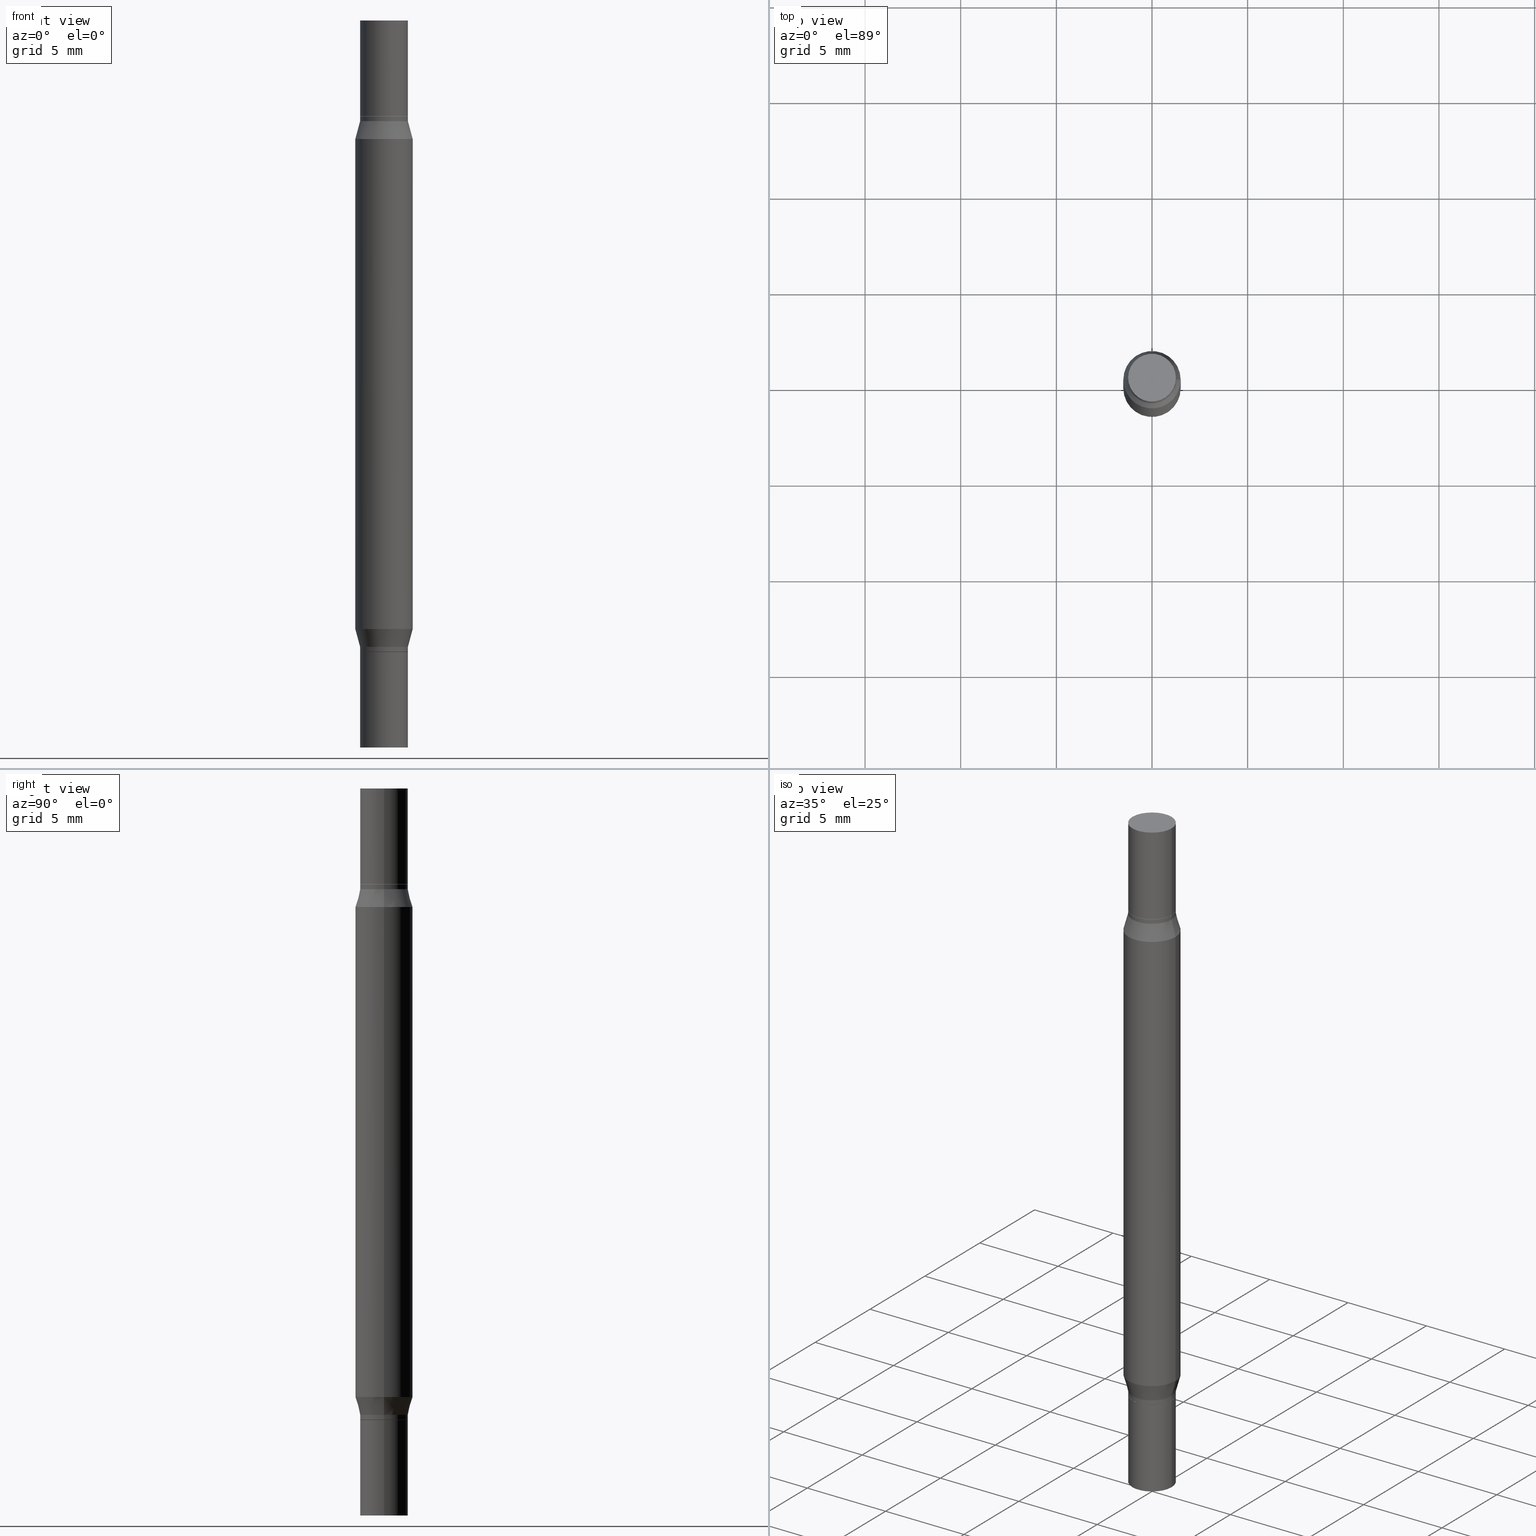
[diagram: canonical four-view strip — front | top / right | iso, engineering-drawing reading convention]
A machine part, canonical four-view strip (front | top / right | iso — engineering-drawing reading convention). The complete STEP part file that produces these views, byte-faithful:
ISO-10303-21;
HEADER;
FILE_DESCRIPTION (( 'STEP AP203' ),
    '1' );
FILE_NAME ('48908.STEP',
    '2024-03-04T16:12:07',
    ( '' ),
    ( '' ),
    'SwSTEP 2.0',
    'SolidWorks 2023',
    '' );
FILE_SCHEMA (( 'CONFIG_CONTROL_DESIGN' ));
ENDSEC;

DATA;
#1 = DIRECTION ( 'NONE',  ( 1.000000000000000000, -6.982962677686265922E-15, 0.000000000000000000 ) ) ;
#2 = ORIENTED_EDGE ( 'NONE', *, *, #979, .T. ) ;
#3 = ADVANCED_FACE ( 'NONE', ( #450 ), #495, .T. ) ;
#4 = CARTESIAN_POINT ( 'NONE',  ( 0.04920000000000000068, -3.433195779781105028E-16, 1.112302229232114997E-34 ) ) ;
#5 = COORDINATED_UNIVERSAL_TIME_OFFSET ( 5, 0, .BEHIND. ) ;
#6 = LINE ( 'NONE', #301, #545 ) ;
#7 = ORIENTED_EDGE ( 'NONE', *, *, #282, .T. ) ;
#8 = VECTOR ( 'NONE', #562, 39.37007874015748143 ) ;
#9 = AXIS2_PLACEMENT_3D ( 'NONE', #246, #718, #705 ) ;
#10 = EDGE_CURVE ( 'NONE', #666, #502, #638, .T. ) ;
#11 = DIRECTION ( 'NONE',  ( -2.445468806185136877E-29, -3.491805094961123683E-15, -1.000000000000000000 ) ) ;
#12 = ORIENTED_EDGE ( 'NONE', *, *, #509, .F. ) ;
#13 = DIRECTION ( 'NONE',  ( 0.2588190451025213501, -5.180148453816008779E-15, -0.9659258262890682012 ) ) ;
#14 = ORIENTED_EDGE ( 'NONE', *, *, #52, .T. ) ;
#15 = CARTESIAN_POINT ( 'NONE',  ( 0.000000000000000000, -5.223847416807283040E-15, -1.496099999999999985 ) ) ;
#16 = DIRECTION ( 'NONE',  ( 1.000000000000000000, -6.982962677686266711E-15, 0.000000000000000000 ) ) ;
#17 = ADVANCED_FACE ( 'NONE', ( #483 ), #856, .F. ) ;
#18 = ORIENTED_EDGE ( 'NONE', *, *, #52, .F. ) ;
#19 = DIRECTION ( 'NONE',  ( 1.000000000000000000, -6.982962677686265922E-15, 4.876176775795935793E-29 ) ) ;
#20 = AXIS2_PLACEMENT_3D ( 'NONE', #571, #410, #35 ) ;
#21 = CLOSED_SHELL ( 'NONE', ( #933, #233, #82, #950 ) ) ;
#22 = CIRCLE ( 'NONE', #101, 0.04920000000000000068 ) ;
#23 = CARTESIAN_POINT ( 'NONE',  ( 3.175930338592637077E-29, -4.534386814755593230E-15, -1.298699999999999966 ) ) ;
#24 = LINE ( 'NONE', #476, #482 ) ;
#25 = ADVANCED_FACE ( 'NONE', ( #924 ), #41, .T. ) ;
#26 = VERTEX_POINT ( 'NONE', #176 ) ;
#27 = ADVANCED_FACE ( 'NONE', ( #168 ), #547, .F. ) ;
#28 = ADVANCED_FACE ( 'NONE', ( #704 ), #205, .T. ) ;
#29 = CARTESIAN_POINT ( 'NONE',  ( 3.152453838053259548E-29, -7.225614688928977972E-16, -0.2070000000000000173 ) ) ;
#30 = ORIENTED_EDGE ( 'NONE', *, *, #97, .F. ) ;
#31 = DIRECTION ( 'NONE',  ( -2.445468806185136597E-29, 3.491481338843145583E-15, 1.000000000000000000 ) ) ;
#32 = PLANE ( 'NONE',  #9 ) ;
#33 = ORIENTED_EDGE ( 'NONE', *, *, #341, .T. ) ;
#34 = DIRECTION ( 'NONE',  ( 0.2588190451025213501, -5.180148453816008779E-15, -0.9659258262890682012 ) ) ;
#35 = DIRECTION ( 'NONE',  ( 1.000000000000000000, -6.982962677686266711E-15, 2.260776888683160490E-33 ) ) ;
#36 = AXIS2_PLACEMENT_3D ( 'NONE', #359, #662, #366 ) ;
#37 = EDGE_CURVE ( 'NONE', #167, #338, #953, .T. ) ;
#38 = AXIS2_PLACEMENT_3D ( 'NONE', #310, #627, #103 ) ;
#39 = ORIENTED_EDGE ( 'NONE', *, *, #835, .F. ) ;
#40 = CARTESIAN_POINT ( 'NONE',  ( 3.175930338592637077E-29, -6.890401399812727626E-16, -0.1973999999999999089 ) ) ;
#41 = CYLINDRICAL_SURFACE ( 'NONE', #738, 0.05905000000000000526 ) ;
#42 = LINE ( 'NONE', #554, #132 ) ;
#43 = ORIENTED_EDGE ( 'NONE', *, *, #481, .T. ) ;
#44 =( CONVERSION_BASED_UNIT ( 'INCH', #292 ) LENGTH_UNIT ( ) NAMED_UNIT ( #747 ) );
#45 = ORIENTED_EDGE ( 'NONE', *, *, #462, .F. ) ;
#46 = CARTESIAN_POINT ( 'NONE',  ( 3.177153072995728757E-29, -4.536132555425014733E-15, -1.299199999999999910 ) ) ;
#47 = CARTESIAN_POINT ( 'NONE',  ( 0.000000000000000000, -5.223847416807283040E-15, -1.496099999999999985 ) ) ;
#48 = CC_DESIGN_APPROVAL ( #299, ( #799 ) ) ;
#49 = ORIENTED_EDGE ( 'NONE', *, *, #370, .F. ) ;
#50 = AXIS2_PLACEMENT_3D ( 'NONE', #369, #691, #932 ) ;
#51 = DIRECTION ( 'NONE',  ( -2.445468806185136597E-29, 3.491481338843145583E-15, 1.000000000000000000 ) ) ;
#52 = EDGE_CURVE ( 'NONE', #258, #839, #110, .T. ) ;
#53 = VECTOR ( 'NONE', #260, 39.37007874015748143 ) ;
#54 = ADVANCED_FACE ( 'NONE', ( #603 ), #133, .T. ) ;
#55 = CARTESIAN_POINT ( 'NONE',  ( 3.435617637421960292E-16, 0.04919999999999546958, -1.299200000000000133 ) ) ;
#56 = VERTEX_POINT ( 'NONE', #295 ) ;
#57 = CARTESIAN_POINT ( 'NONE',  ( -0.04870000000000000023, -3.523458117166149835E-16, -0.1969000000000000195 ) ) ;
#58 = DIRECTION ( 'NONE',  ( -2.445468806185136597E-29, 3.491481338843145583E-15, 1.000000000000000000 ) ) ;
#59 = DIRECTION ( 'NONE',  ( 1.000000000000000000, -6.982962677686265133E-15, 0.000000000000000000 ) ) ;
#60 = EDGE_CURVE ( 'NONE', #272, #842, #891, .T. ) ;
#61 = CALENDAR_DATE ( 2024, 4, 3 ) ;
#62 = VERTEX_POINT ( 'NONE', #521 ) ;
#63 = CARTESIAN_POINT ( 'NONE',  ( -0.04920000000000000068, -4.886310915316924225E-15, -1.496099999999999985 ) ) ;
#64 = FACE_OUTER_BOUND ( 'NONE', #871, .T. ) ;
#65 = CYLINDRICAL_SURFACE ( 'NONE', #146, 0.05905000000000000526 ) ;
#66 = ORIENTED_EDGE ( 'NONE', *, *, #807, .F. ) ;
#67 = CYLINDRICAL_SURFACE ( 'NONE', #36, 0.04919999999999993129 ) ;
#68 = AXIS2_PLACEMENT_3D ( 'NONE', #517, #600, #143 ) ;
#69 = AXIS2_PLACEMENT_3D ( 'NONE', #392, #539, #843 ) ;
#70 = CARTESIAN_POINT ( 'NONE',  ( 3.152453838053259548E-29, -7.225614688928977972E-16, -0.2070000000000000173 ) ) ;
#71 = CIRCLE ( 'NONE', #830, 0.05904999999999999832 ) ;
#72 = DIRECTION ( 'NONE',  ( 1.000000000000000000, -6.982962677686266711E-15, 4.876176775795935793E-29 ) ) ;
#73 = PERSON_AND_ORGANIZATION_ROLE ( 'creator' ) ;
#74 = CARTESIAN_POINT ( 'NONE',  ( 0.04919999999999992435, -1.032601903723435019E-15, -0.1973999999999999089 ) ) ;
#75 = ORIENTED_EDGE ( 'NONE', *, *, #426, .F. ) ;
#76 = DIRECTION ( 'NONE',  ( 1.000000000000000000, -6.982962677686267499E-15, 0.000000000000000000 ) ) ;
#77 = PERSON_AND_ORGANIZATION ( #323, #302 ) ;
#78 = DIRECTION ( 'NONE',  ( 1.000000000000000000, -6.982962677686265133E-15, 0.000000000000000000 ) ) ;
#79 = ORIENTED_EDGE ( 'NONE', *, *, #865, .T. ) ;
#80 = CARTESIAN_POINT ( 'NONE',  ( -0.04919999999999992435, -4.184799788761624574E-15, -1.298699999999999966 ) ) ;
#81 = DIRECTION ( 'NONE',  ( 1.000000000000000000, -6.982962677686272233E-15, 0.000000000000000000 ) ) ;
#82 = ADVANCED_FACE ( 'NONE', ( #900 ), #279, .T. ) ;
#83 = DIRECTION ( 'NONE',  ( 2.445468806185136597E-29, 3.491805094961124077E-15, 1.000000000000000000 ) ) ;
#84 = ORIENTED_EDGE ( 'NONE', *, *, #503, .F. ) ;
#85 = AXIS2_PLACEMENT_3D ( 'NONE', #565, #181, #723 ) ;
#86 = EDGE_CURVE ( 'NONE', #432, #628, #703, .T. ) ;
#87 = VECTOR ( 'NONE', #956, 39.37007874015748143 ) ;
#88 = CIRCLE ( 'NONE', #925, 0.04919999999999993823 ) ;
#89 = FACE_OUTER_BOUND ( 'NONE', #106, .T. ) ;
#90 = ORIENTED_EDGE ( 'NONE', *, *, #144, .F. ) ;
#91 = APPROVAL_ROLE ( '' ) ;
#92 = DIRECTION ( 'NONE',  ( 2.445468806185136597E-29, 3.491805094961124077E-15, 1.000000000000000000 ) ) ;
#93 = ORIENTED_EDGE ( 'NONE', *, *, #282, .F. ) ;
#94 = ADVANCED_FACE ( 'NONE', ( #815 ), #220, .T. ) ;
#95 = DIRECTION ( 'NONE',  ( -2.438088387897959208E-29, -3.491805094961123683E-15, -1.000000000000000000 ) ) ;
#96 = CARTESIAN_POINT ( 'NONE',  ( -0.04920000000000000068, -4.886310915316924225E-15, -1.496099999999999985 ) ) ;
#97 = EDGE_CURVE ( 'NONE', #628, #432, #769, .T. ) ;
#98 = ORIENTED_EDGE ( 'NONE', *, *, #724, .F. ) ;
#99 = EDGE_CURVE ( 'NONE', #467, #866, #663, .T. ) ;
#100 = FACE_OUTER_BOUND ( 'NONE', #493, .T. ) ;
#101 = AXIS2_PLACEMENT_3D ( 'NONE', #147, #58, #748 ) ;
#102 = CIRCLE ( 'NONE', #653, 0.04870000000000000023 ) ;
#103 = DIRECTION ( 'NONE',  ( -1.000000000000000000, 6.982962677686265922E-15, -2.260776888683160832E-33 ) ) ;
#104 = ORIENTED_EDGE ( 'NONE', *, *, #729, .T. ) ;
#105 = DIRECTION ( 'NONE',  ( -0.2588190451025213501, -1.597197180879714326E-15, -0.9659258262890682012 ) ) ;
#106 = EDGE_LOOP ( 'NONE', ( #602, #710 ) ) ;
#107 = DIRECTION ( 'NONE',  ( 1.000000000000000000, -6.982962677686265922E-15, 4.876176775795935793E-29 ) ) ;
#108 = EDGE_LOOP ( 'NONE', ( #674, #735 ) ) ;
#109 = ADVANCED_FACE ( 'NONE', ( #978 ), #315, .T. ) ;
#110 = LINE ( 'NONE', #409, #561 ) ;
#111 = DIRECTION ( 'NONE',  ( 1.000000000000000000, -6.982962677686266711E-15, 4.876176775795935793E-29 ) ) ;
#112 = ORIENTED_EDGE ( 'NONE', *, *, #835, .T. ) ;
#113 = DIRECTION ( 'NONE',  ( 2.445468806185136597E-29, 3.491805094961124077E-15, 1.000000000000000000 ) ) ;
#114 = VECTOR ( 'NONE', #591, 39.37007874015748143 ) ;
#115 = CARTESIAN_POINT ( 'NONE',  ( 0.04919999999999993823, -1.066123232635061730E-15, -0.2070000000000000173 ) ) ;
#116 = ORIENTED_EDGE ( 'NONE', *, *, #345, .F. ) ;
#117 = CARTESIAN_POINT ( 'NONE',  ( 3.435617637421960292E-16, 0.04919999999999932067, -0.1969000000000000195 ) ) ;
#118 = DIRECTION ( 'NONE',  ( -2.445468806185136877E-29, 3.491481338843145188E-15, 1.000000000000000000 ) ) ;
#119 = ORIENTED_EDGE ( 'NONE', *, *, #166, .F. ) ;
#120 = CARTESIAN_POINT ( 'NONE',  ( 3.152453838053259548E-29, -4.500868593902698784E-15, -1.289099999999999913 ) ) ;
#121 = CARTESIAN_POINT ( 'NONE',  ( 3.177153072995728757E-29, -6.872942374337910995E-16, -0.1969000000000000195 ) ) ;
#122 = EDGE_CURVE ( 'NONE', #897, #467, #836, .T. ) ;
#123 = EDGE_LOOP ( 'NONE', ( #314, #893 ) ) ;
#124 = DIRECTION ( 'NONE',  ( 1.000000000000000000, -6.982962677686267499E-15, 0.000000000000000000 ) ) ;
#125 = EDGE_CURVE ( 'NONE', #326, #467, #286, .T. ) ;
#126 = EDGE_CURVE ( 'NONE', #628, #915, #153, .T. ) ;
#127 = LINE ( 'NONE', #806, #970 ) ;
#128 = AXIS2_PLACEMENT_3D ( 'NONE', #676, #211, #72 ) ;
#129 = ORIENTED_EDGE ( 'NONE', *, *, #509, .T. ) ;
#130 = AXIS2_PLACEMENT_3D ( 'NONE', #117, #419, #731 ) ;
#131 = DIRECTION ( 'NONE',  ( -2.445468806185136597E-29, -3.491805094961124077E-15, -1.000000000000000000 ) ) ;
#132 = VECTOR ( 'NONE', #487, 39.37007874015748143 ) ;
#133 = CYLINDRICAL_SURFACE ( 'NONE', #605, 0.04920000000000000068 ) ;
#134 = CARTESIAN_POINT ( 'NONE',  ( -0.04919999999999993823, -4.168040678335177351E-15, -1.289099999999999913 ) ) ;
#135 = ORIENTED_EDGE ( 'NONE', *, *, #935, .F. ) ;
#136 = FACE_OUTER_BOUND ( 'NONE', #610, .T. ) ;
#137 = DIRECTION ( 'NONE',  ( -2.445468806185136877E-29, -3.491805094961123683E-15, -1.000000000000000000 ) ) ;
#138 = APPLICATION_CONTEXT ( 'configuration controlled 3d designs of mechanical parts and assemblies' ) ;
#139 = DIRECTION ( 'NONE',  ( 0.000000000000000000, 1.000000000000000000, -4.626330217890369336E-15 ) ) ;
#140 = DIRECTION ( 'NONE',  ( 1.000000000000000000, -6.982962677686265922E-15, 0.000000000000000000 ) ) ;
#141 = EDGE_LOOP ( 'NONE', ( #157, #287, #834, #538 ) ) ;
#142 = DIRECTION ( 'NONE',  ( 1.000000000000000000, -6.982962677686261977E-15, 0.000000000000000000 ) ) ;
#143 = DIRECTION ( 'NONE',  ( 1.000000000000000000, -6.982962677686266711E-15, 0.000000000000000000 ) ) ;
#144 = EDGE_CURVE ( 'NONE', #502, #666, #384, .T. ) ;
#145 = DIRECTION ( 'NONE',  ( 1.000000000000000000, -6.982962677686271444E-15, 0.000000000000000000 ) ) ;
#146 = AXIS2_PLACEMENT_3D ( 'NONE', #670, #765, #81 ) ;
#147 = CARTESIAN_POINT ( 'NONE',  ( 3.658665880933582389E-29, -5.223605231043229660E-15, -1.496099999999999985 ) ) ;
#148 = AXIS2_PLACEMENT_3D ( 'NONE', #453, #355, #433 ) ;
#149 = DIRECTION ( 'NONE',  ( 0.7071067811865656694, -7.406779323393341342E-15, -0.7071067811865294761 ) ) ;
#150 = FACE_OUTER_BOUND ( 'NONE', #808, .T. ) ;
#151 = EDGE_CURVE ( 'NONE', #56, #155, #620, .T. ) ;
#152 = VERTEX_POINT ( 'NONE', #438 ) ;
#153 = LINE ( 'NONE', #973, #114 ) ;
#154 = LINE ( 'NONE', #460, #673 ) ;
#155 = VERTEX_POINT ( 'NONE', #680 ) ;
#156 = DIRECTION ( 'NONE',  ( -2.445468806185136597E-29, -3.491805094961124077E-15, -1.000000000000000000 ) ) ;
#157 = ORIENTED_EDGE ( 'NONE', *, *, #37, .T. ) ;
#158 = LOCAL_TIME ( 11, 12, 7.000000000000000000, #448 ) ;
#159 = AXIS2_PLACEMENT_3D ( 'NONE', #47, #262, #570 ) ;
#160 = VECTOR ( 'NONE', #105, 39.37007874015747433 ) ;
#161 = PERSON_AND_ORGANIZATION ( #323, #302 ) ;
#162 = FACE_OUTER_BOUND ( 'NONE', #311, .T. ) ;
#163 = VERTEX_POINT ( 'NONE', #4 ) ;
#164 = MANIFOLD_SOLID_BREP ( 'Combine1', #413 ) ;
#165 = CARTESIAN_POINT ( 'NONE',  ( 3.175930338592637077E-29, -4.534386814755593230E-15, -1.298699999999999966 ) ) ;
#166 = EDGE_CURVE ( 'NONE', #942, #839, #298, .T. ) ;
#167 = VERTEX_POINT ( 'NONE', #895 ) ;
#168 = FACE_OUTER_BOUND ( 'NONE', #960, .T. ) ;
#169 = ADVANCED_FACE ( 'NONE', ( #458 ), #65, .T. ) ;
#170 = DIRECTION ( 'NONE',  ( 1.000000000000000000, -6.982962677686271444E-15, 0.000000000000000000 ) ) ;
#171 = ORIENTED_EDGE ( 'NONE', *, *, #977, .T. ) ;
#172 = FACE_OUTER_BOUND ( 'NONE', #108, .T. ) ;
#173 = FACE_OUTER_BOUND ( 'NONE', #649, .T. ) ;
#174 = CONICAL_SURFACE ( 'NONE', #316, 0.04870000000000000023, 0.7853981633974739252 ) ;
#175 = AXIS2_PLACEMENT_3D ( 'NONE', #568, #484, #929 ) ;
#176 = CARTESIAN_POINT ( 'NONE',  ( -0.04919999999999993823, -3.682643029467263661E-16, -0.2070000000000000173 ) ) ;
#177 = CARTESIAN_POINT ( 'NONE',  ( 0.04919999999999992435, -1.032601903723435019E-15, -0.1973999999999999089 ) ) ;
#178 = ORIENTED_EDGE ( 'NONE', *, *, #958, .F. ) ;
#179 = DIRECTION ( 'NONE',  ( -2.445468806185136597E-29, -3.491805094961124077E-15, -1.000000000000000000 ) ) ;
#180 = CC_DESIGN_DATE_AND_TIME_ASSIGNMENT ( #540, #824, ( #719 ) ) ;
#181 = DIRECTION ( 'NONE',  ( -2.445468806185136597E-29, 3.491481338843145583E-15, 1.000000000000000000 ) ) ;
#182 = CARTESIAN_POINT ( 'NONE',  ( 0.000000000000000000, 0.000000000000000000, 0.000000000000000000 ) ) ;
#183 = ORIENTED_EDGE ( 'NONE', *, *, #122, .T. ) ;
#184 = LINE ( 'NONE', #557, #8 ) ;
#185 = DIRECTION ( 'NONE',  ( -2.445468806185136597E-29, -3.491805094961124077E-15, -1.000000000000000000 ) ) ;
#186 = DIRECTION ( 'NONE',  ( 1.000000000000000000, -6.982962677686272233E-15, 0.000000000000000000 ) ) ;
#187 = CARTESIAN_POINT ( 'NONE',  ( 0.04920000000000000068, -3.435617637421643269E-16, 2.399078973691600472E-30 ) ) ;
#188 = VERTEX_POINT ( 'NONE', #291 ) ;
#189 = DIRECTION ( 'NONE',  ( -2.445468806185136597E-29, -3.491805094961124077E-15, -1.000000000000000000 ) ) ;
#190 = CIRCLE ( 'NONE', #20, 0.04920000000000000068 ) ;
#191 = CIRCLE ( 'NONE', #69, 0.04920000000000000068 ) ;
#192 = LINE ( 'NONE', #320, #53 ) ;
#193 = APPROVAL_PERSON_ORGANIZATION ( #280, #654, #217 ) ;
#194 = ORIENTED_EDGE ( 'NONE', *, *, #935, .T. ) ;
#195 = COORDINATED_UNIVERSAL_TIME_OFFSET ( 5, 0, .BEHIND. ) ;
#196 = ADVANCED_FACE ( 'NONE', ( #823 ), #445, .T. ) ;
#197 = ORIENTED_EDGE ( 'NONE', *, *, #60, .F. ) ;
#198 = CARTESIAN_POINT ( 'NONE',  ( 3.177153072995728757E-29, -6.872942374337910995E-16, -0.1969000000000000195 ) ) ;
#199 = ADVANCED_FACE ( 'NONE', ( #624 ), #387, .F. ) ;
#200 = LINE ( 'NONE', #874, #801 ) ;
#201 = ORIENTED_EDGE ( 'NONE', *, *, #555, .T. ) ;
#202 = FACE_OUTER_BOUND ( 'NONE', #768, .T. ) ;
#203 = CARTESIAN_POINT ( 'NONE',  ( 0.04919999999999993129, -5.567409180549447565E-15, -1.496099999999999985 ) ) ;
#204 = CARTESIAN_POINT ( 'NONE',  ( 0.000000000000000000, 0.000000000000000000, 0.000000000000000000 ) ) ;
#205 = CONICAL_SURFACE ( 'NONE', #447, 0.04870000000000000023, 0.7853981633974739252 ) ;
#206 = ORIENTED_EDGE ( 'NONE', *, *, #939, .T. ) ;
#207 = CIRCLE ( 'NONE', #921, 0.04920000000000000068 ) ;
#208 = DIRECTION ( 'NONE',  ( 1.000000000000000000, -6.982962677686265922E-15, 0.000000000000000000 ) ) ;
#209 = CONICAL_SURFACE ( 'NONE', #576, 0.04870000000000000023, 0.7853981633974739252 ) ;
#210 = EDGE_CURVE ( 'NONE', #188, #948, #496, .T. ) ;
#211 = DIRECTION ( 'NONE',  ( -2.445468806185136597E-29, 3.491481338843145583E-15, 1.000000000000000000 ) ) ;
#212 = PLANE ( 'NONE',  #920 ) ;
#213 = ORIENTED_EDGE ( 'NONE', *, *, #440, .T. ) ;
#214 = DIRECTION ( 'NONE',  ( 2.445468806185136597E-29, 3.491805094961124077E-15, 1.000000000000000000 ) ) ;
#215 = DIRECTION ( 'NONE',  ( -2.445468806185136597E-29, -3.491805094961124077E-15, -1.000000000000000000 ) ) ;
#216 = DIRECTION ( 'NONE',  ( 1.000000000000000000, -6.982962677686261977E-15, 0.000000000000000000 ) ) ;
#217 = APPROVAL_ROLE ( '' ) ;
#218 = DIRECTION ( 'NONE',  ( 1.000000000000000000, -6.982962677686267499E-15, 0.000000000000000000 ) ) ;
#219 = DIRECTION ( 'NONE',  ( 1.000000000000000000, -6.982962677686265922E-15, 0.000000000000000000 ) ) ;
#220 = CYLINDRICAL_SURFACE ( 'NONE', #753, 0.04919999999999993129 ) ;
#221 = EDGE_CURVE ( 'NONE', #968, #152, #288, .T. ) ;
#222 = CARTESIAN_POINT ( 'NONE',  ( 3.152453838053259548E-29, -7.225614688928977972E-16, -0.2070000000000000173 ) ) ;
#223 = AXIS2_PLACEMENT_3D ( 'NONE', #486, #793, #332 ) ;
#224 = ORIENTED_EDGE ( 'NONE', *, *, #440, .F. ) ;
#225 = CIRCLE ( 'NONE', #722, 0.04919999999999992435 ) ;
#226 = DIRECTION ( 'NONE',  ( 0.2588190451025213501, 1.565188264969621968E-15, 0.9659258262890682012 ) ) ;
#227 = EDGE_CURVE ( 'NONE', #777, #740, #191, .T. ) ;
#228 = ADVANCED_FACE ( 'NONE', ( #173 ), #696, .F. ) ;
#229 = CARTESIAN_POINT ( 'NONE',  ( -0.04870000000000000023, -3.523458117166149835E-16, -0.1969000000000000195 ) ) ;
#230 = ORIENTED_EDGE ( 'NONE', *, *, #865, .F. ) ;
#231 = EDGE_CURVE ( 'NONE', #964, #842, #245, .T. ) ;
#232 = FACE_OUTER_BOUND ( 'NONE', #500, .T. ) ;
#233 = ADVANCED_FACE ( 'NONE', ( #100 ), #381, .F. ) ;
#234 = ORIENTED_EDGE ( 'NONE', *, *, #805, .T. ) ;
#235 = CALENDAR_DATE ( 2024, 4, 3 ) ;
#236 = DIRECTION ( 'NONE',  ( -2.445468806185136597E-29, 3.491481338843145583E-15, 1.000000000000000000 ) ) ;
#237 = ORIENTED_EDGE ( 'NONE', *, *, #533, .T. ) ;
#238 = CIRCLE ( 'NONE', #479, 0.04919999999999993823 ) ;
#239 = AXIS2_PLACEMENT_3D ( 'NONE', #851, #701, #19 ) ;
#240 = DIRECTION ( 'NONE',  ( 0.000000000000000000, 1.000000000000000000, -3.491643216902134435E-15 ) ) ;
#241 = CIRCLE ( 'NONE', #770, 0.04920000000000000068 ) ;
#242 = CIRCLE ( 'NONE', #864, 0.04870000000000000023 ) ;
#243 = LINE ( 'NONE', #96, #331 ) ;
#244 = ORIENTED_EDGE ( 'NONE', *, *, #426, .T. ) ;
#245 = LINE ( 'NONE', #551, #755 ) ;
#246 = CARTESIAN_POINT ( 'NONE',  ( 3.511898583110818647E-29, -2.099369381939656466E-16, 0.000000000000000000 ) ) ;
#247 = ORIENTED_EDGE ( 'NONE', *, *, #732, .T. ) ;
#248 = LINE ( 'NONE', #727, #863 ) ;
#249 = DIRECTION ( 'NONE',  ( 0.000000000000000000, 3.491643216902134435E-15, 1.000000000000000000 ) ) ;
#250 = CARTESIAN_POINT ( 'NONE',  ( -0.04919999999999992435, -3.515036384909124190E-16, -0.1973999999999999089 ) ) ;
#251 = ADVANCED_FACE ( 'NONE', ( #403 ), #174, .T. ) ;
#252 = ORIENTED_EDGE ( 'NONE', *, *, #724, .T. ) ;
#253 = DIRECTION ( 'NONE',  ( 1.000000000000000000, -6.982962677686265133E-15, 0.000000000000000000 ) ) ;
#254 = LOCAL_TIME ( 11, 12, 7.000000000000000000, #5 ) ;
#255 = ORIENTED_EDGE ( 'NONE', *, *, #99, .F. ) ;
#256 = AXIS2_PLACEMENT_3D ( 'NONE', #947, #327, #416 ) ;
#257 = CYLINDRICAL_SURFACE ( 'NONE', #446, 0.04920000000000000068 ) ;
#258 = VERTEX_POINT ( 'NONE', #946 ) ;
#259 = CARTESIAN_POINT ( 'NONE',  ( 3.062556691798133272E-29, -8.509226700344482173E-16, -0.2437607004545535860 ) ) ;
#260 = DIRECTION ( 'NONE',  ( 0.7071067811865656694, -7.406779323393341342E-15, -0.7071067811865294761 ) ) ;
#261 = ORIENTED_EDGE ( 'NONE', *, *, #844, .T. ) ;
#262 = DIRECTION ( 'NONE',  ( -2.445468806185136597E-29, -3.491805094961124077E-15, -1.000000000000000000 ) ) ;
#263 = DIRECTION ( 'NONE',  ( 1.000000000000000000, -6.982962677686266711E-15, 0.000000000000000000 ) ) ;
#264 = EDGE_LOOP ( 'NONE', ( #39, #277, #33, #975 ) ) ;
#265 = DIRECTION ( 'NONE',  ( 1.000000000000000000, -6.982962677686267499E-15, 0.000000000000000000 ) ) ;
#266 = ADVANCED_FACE ( 'NONE', ( #340 ), #797, .T. ) ;
#267 = AXIS2_PLACEMENT_3D ( 'NONE', #204, #750, #963 ) ;
#268 = AXIS2_PLACEMENT_3D ( 'NONE', #444, #215, #899 ) ;
#269 = EDGE_CURVE ( 'NONE', #740, #948, #200, .T. ) ;
#270 = MECHANICAL_CONTEXT ( 'NONE', #613, 'mechanical' ) ;
#271 = CONICAL_SURFACE ( 'NONE', #148, 0.04919999999999993823, 0.2617993877991500740 ) ;
#272 = VERTEX_POINT ( 'NONE', #651 ) ;
#273 = DIRECTION ( 'NONE',  ( 1.000000000000000000, -6.982962677686261977E-15, 0.000000000000000000 ) ) ;
#274 = LINE ( 'NONE', #579, #399 ) ;
#275 = EDGE_CURVE ( 'NONE', #155, #502, #274, .T. ) ;
#276 = DIRECTION ( 'NONE',  ( -2.445468806185136877E-29, -3.491805094961123683E-15, -1.000000000000000000 ) ) ;
#277 = ORIENTED_EDGE ( 'NONE', *, *, #626, .F. ) ;
#278 = CARTESIAN_POINT ( 'NONE',  ( -0.05905000000000000526, -1.326250236009622014E-15, -0.7480499999999999927 ) ) ;
#279 = CYLINDRICAL_SURFACE ( 'NONE', #128, 0.04920000000000000068 ) ;
#280 = PERSON_AND_ORGANIZATION ( #323, #302 ) ;
#281 = EDGE_LOOP ( 'NONE', ( #224, #7, #79, #45 ) ) ;
#282 = EDGE_CURVE ( 'NONE', #62, #647, #22, .T. ) ;
#283 = DIRECTION ( 'NONE',  ( -2.445468806185136597E-29, 3.491481338843145583E-15, 1.000000000000000000 ) ) ;
#284 = DIRECTION ( 'NONE',  ( 1.000000000000000000, -6.982962677686270655E-15, 0.000000000000000000 ) ) ;
#285 = LOCAL_TIME ( 11, 12, 7.000000000000000000, #681 ) ;
#286 = CIRCLE ( 'NONE', #846, 0.04919999999999992435 ) ;
#287 = ORIENTED_EDGE ( 'NONE', *, *, #352, .T. ) ;
#288 = CIRCLE ( 'NONE', #687, 0.04920000000000000068 ) ;
#289 = DIRECTION ( 'NONE',  ( 1.000000000000000000, -6.982962677686261977E-15, 0.000000000000000000 ) ) ;
#290 = AXIS2_PLACEMENT_3D ( 'NONE', #508, #425, #218 ) ;
#291 = CARTESIAN_POINT ( 'NONE',  ( -0.04920000000000000068, -5.989524344509276303E-18, -0.1969000000000000195 ) ) ;
#292 = LENGTH_MEASURE_WITH_UNIT ( LENGTH_MEASURE( 0.02539999999999999897 ), #581 );
#293 = ORIENTED_EDGE ( 'NONE', *, *, #227, .F. ) ;
#294 = DIRECTION ( 'NONE',  ( 2.445468806185136597E-29, 3.491805094961124077E-15, 1.000000000000000000 ) ) ;
#295 = CARTESIAN_POINT ( 'NONE',  ( 0.05904999999999999832, -1.263266616151821658E-15, -0.2437607004545535860 ) ) ;
#296 = LINE ( 'NONE', #307, #367 ) ;
#297 = ORIENTED_EDGE ( 'NONE', *, *, #505, .T. ) ;
#298 = LINE ( 'NONE', #906, #480 ) ;
#299 = APPROVAL ( #761, 'UNSPECIFIED' ) ;
#300 = ADVANCED_FACE ( 'NONE', ( #64 ), #679, .T. ) ;
#301 = CARTESIAN_POINT ( 'NONE',  ( 0.04920000000000000068, -5.567409180549447565E-15, -1.496099999999999985 ) ) ;
#302 = ORGANIZATION ( 'UNSPECIFIED', 'UNSPECIFIED', '' ) ;
#303 = AXIS2_PLACEMENT_3D ( 'NONE', #402, #179, #870 ) ;
#304 = ORIENTED_EDGE ( 'NONE', *, *, #481, .F. ) ;
#305 = VECTOR ( 'NONE', #11, 39.37007874015748143 ) ;
#306 = PERSON_AND_ORGANIZATION ( #323, #302 ) ;
#307 = CARTESIAN_POINT ( 'NONE',  ( 0.04870000000000000023, -4.876202837828336250E-15, -1.299199999999999910 ) ) ;
#308 = ORIENTED_EDGE ( 'NONE', *, *, #667, .F. ) ;
#309 = CARTESIAN_POINT ( 'NONE',  ( 3.177153072995728757E-29, -6.872942374337910995E-16, -0.1969000000000000195 ) ) ;
#310 = CARTESIAN_POINT ( 'NONE',  ( 3.435617637421960292E-16, 0.04919999999999932067, -0.1969000000000000195 ) ) ;
#311 = EDGE_LOOP ( 'NONE', ( #30, #795, #129, #622 ) ) ;
#312 = DIRECTION ( 'NONE',  ( -2.445468806185136597E-29, -3.491805094961124077E-15, -1.000000000000000000 ) ) ;
#313 = PRODUCT_DEFINITION_SHAPE ( 'NONE', 'NONE',  #404 ) ;
#314 = ORIENTED_EDGE ( 'NONE', *, *, #10, .T. ) ;
#315 = CONICAL_SURFACE ( 'NONE', #876, 0.04919999999999993823, 0.2617993877991500740 ) ;
#316 = AXIS2_PLACEMENT_3D ( 'NONE', #121, #185, #408 ) ;
#317 = DIRECTION ( 'NONE',  ( 1.000000000000000000, -6.982962677686266711E-15, 0.000000000000000000 ) ) ;
#318 = AXIS2_PLACEMENT_3D ( 'NONE', #909, #312, #532 ) ;
#319 = CIRCLE ( 'NONE', #623, 0.04920000000000000068 ) ;
#320 = CARTESIAN_POINT ( 'NONE',  ( 0.04870000000000000023, -1.027364519837112222E-15, -0.1969000000000000195 ) ) ;
#321 = ORIENTED_EDGE ( 'NONE', *, *, #341, .F. ) ;
#322 = EDGE_CURVE ( 'NONE', #26, #866, #449, .T. ) ;
#323 = PERSON ( 'UNSPECIFIED', 'UNSPECIFIED', 'UNSPECIFIED', ('UNSPECIFIED'), ('UNSPECIFIED'), ('UNSPECIFIED') ) ;
#324 = DIRECTION ( 'NONE',  ( -2.445468806185136597E-29, 3.491481338843145583E-15, 1.000000000000000000 ) ) ;
#325 = ORIENTED_EDGE ( 'NONE', *, *, #883, .F. ) ;
#326 = VERTEX_POINT ( 'NONE', #759 ) ;
#327 = DIRECTION ( 'NONE',  ( 2.445468806185136597E-29, 3.491805094961124077E-15, 1.000000000000000000 ) ) ;
#328 = ORIENTED_EDGE ( 'NONE', *, *, #844, .F. ) ;
#329 = DIRECTION ( 'NONE',  ( -2.438088387897959208E-29, -3.491805094961123683E-15, -1.000000000000000000 ) ) ;
#330 = VECTOR ( 'NONE', #668, 39.37007874015748143 ) ;
#331 = VECTOR ( 'NONE', #767, 39.37007874015748143 ) ;
#332 = DIRECTION ( 'NONE',  ( 0.000000000000000000, 1.000000000000000000, -4.626330217890369336E-15 ) ) ;
#333 = ADVANCED_FACE ( 'NONE', ( #695 ), #380, .T. ) ;
#334 = CARTESIAN_POINT ( 'NONE',  ( 3.152453838053259548E-29, -4.500868593902698784E-15, -1.289099999999999913 ) ) ;
#335 = ORIENTED_EDGE ( 'NONE', *, *, #505, .F. ) ;
#336 = CARTESIAN_POINT ( 'NONE',  ( 0.000000000000000000, -5.223847416807283040E-15, -1.496099999999999985 ) ) ;
#337 = FACE_OUTER_BOUND ( 'NONE', #394, .T. ) ;
#338 = VERTEX_POINT ( 'NONE', #80 ) ;
#339 = FACE_OUTER_BOUND ( 'NONE', #572, .T. ) ;
#340 = FACE_OUTER_BOUND ( 'NONE', #436, .T. ) ;
#341 = EDGE_CURVE ( 'NONE', #343, #56, #535, .T. ) ;
#342 = CARTESIAN_POINT ( 'NONE',  ( 0.04919999999999993823, -4.844430357644862519E-15, -1.289099999999999913 ) ) ;
#343 = VERTEX_POINT ( 'NONE', #423 ) ;
#344 = DIRECTION ( 'NONE',  ( -2.445468806185136597E-29, 3.491481338843145583E-15, 1.000000000000000000 ) ) ;
#345 = EDGE_CURVE ( 'NONE', #964, #942, #527, .T. ) ;
#346 = AXIS2_PLACEMENT_3D ( 'NONE', #630, #95, #558 ) ;
#347 = AXIS2_PLACEMENT_3D ( 'NONE', #471, #249, #240 ) ;
#348 = LINE ( 'NONE', #728, #737 ) ;
#349 = EDGE_LOOP ( 'NONE', ( #197, #751, #14, #936 ) ) ;
#350 = LINE ( 'NONE', #63, #330 ) ;
#351 = DIRECTION ( 'NONE',  ( -2.445468806185136597E-29, -3.491805094961124077E-15, -1.000000000000000000 ) ) ;
#352 = EDGE_CURVE ( 'NONE', #338, #964, #248, .T. ) ;
#353 = FACE_OUTER_BOUND ( 'NONE', #821, .T. ) ;
#354 = ORIENTED_EDGE ( 'NONE', *, *, #125, .F. ) ;
#355 = DIRECTION ( 'NONE',  ( -2.445468806185136597E-29, -3.491805094961124077E-15, -1.000000000000000000 ) ) ;
#356 = DIRECTION ( 'NONE',  ( -2.445468806185136597E-29, -3.491805094961124077E-15, -1.000000000000000000 ) ) ;
#357 = CARTESIAN_POINT ( 'NONE',  ( 3.152453838053259548E-29, -7.225614688928977972E-16, -0.2070000000000000173 ) ) ;
#358 = ORIENTED_EDGE ( 'NONE', *, *, #210, .T. ) ;
#359 = CARTESIAN_POINT ( 'NONE',  ( 0.000000000000000000, 0.000000000000000000, 0.000000000000000000 ) ) ;
#360 = DIRECTION ( 'NONE',  ( -2.445468806185136877E-29, -3.491805094961123683E-15, -1.000000000000000000 ) ) ;
#361 =( NAMED_UNIT ( * ) PLANE_ANGLE_UNIT ( ) SI_UNIT ( $, .RADIAN. ) );
#362 = CIRCLE ( 'NONE', #640, 0.04920000000000000068 ) ;
#363 = ADVANCED_FACE ( 'NONE', ( #339 ), #786, .T. ) ;
#364 = EDGE_LOOP ( 'NONE', ( #544, #787 ) ) ;
#365 = AXIS2_PLACEMENT_3D ( 'NONE', #371, #969, #289 ) ;
#366 = DIRECTION ( 'NONE',  ( 1.000000000000000000, -6.982962677686266711E-15, 4.876176775795936353E-29 ) ) ;
#367 = VECTOR ( 'NONE', #849, 39.37007874015748143 ) ;
#368 = DIRECTION ( 'NONE',  ( 2.445468806185136597E-29, 3.491805094961124077E-15, 1.000000000000000000 ) ) ;
#369 = CARTESIAN_POINT ( 'NONE',  ( 0.000000000000000000, 0.000000000000000000, 0.000000000000000000 ) ) ;
#370 = EDGE_CURVE ( 'NONE', #155, #56, #414, .T. ) ;
#371 = CARTESIAN_POINT ( 'NONE',  ( 0.000000000000000000, -5.223847416807283040E-15, -1.496099999999999985 ) ) ;
#372 = ORIENTED_EDGE ( 'NONE', *, *, #231, .F. ) ;
#373 = EDGE_CURVE ( 'NONE', #467, #326, #941, .T. ) ;
#374 = DIRECTION ( 'NONE',  ( 2.445468806185136597E-29, 3.491805094961124077E-15, 1.000000000000000000 ) ) ;
#375 = EDGE_CURVE ( 'NONE', #928, #343, #184, .T. ) ;
#376 = PERSON_AND_ORGANIZATION ( #323, #302 ) ;
#377 = ORIENTED_EDGE ( 'NONE', *, *, #352, .F. ) ;
#378 = DIRECTION ( 'NONE',  ( 1.000000000000000000, -6.982962677686273021E-15, 0.000000000000000000 ) ) ;
#379 = EDGE_LOOP ( 'NONE', ( #244, #475, #507, #385 ) ) ;
#380 = CYLINDRICAL_SURFACE ( 'NONE', #828, 0.05905000000000000526 ) ;
#381 = PLANE ( 'NONE',  #721 ) ;
#382 = APPROVAL_DATE_TIME ( #388, #417 ) ;
#383 = DIRECTION ( 'NONE',  ( -2.445468806185136877E-29, -3.491805094961123683E-15, -1.000000000000000000 ) ) ;
#384 = CIRCLE ( 'NONE', #971, 0.05905000000000000526 ) ;
#385 = ORIENTED_EDGE ( 'NONE', *, *, #617, .F. ) ;
#386 = CIRCLE ( 'NONE', #957, 0.05904999999999999832 ) ;
#387 = PLANE ( 'NONE',  #347 ) ;
#388 = DATE_AND_TIME ( #980, #254 ) ;
#389 = ADVANCED_FACE ( 'NONE', ( #573 ), #796, .F. ) ;
#390 = PLANE ( 'NONE',  #38 ) ;
#391 = EDGE_LOOP ( 'NONE', ( #781, #213, #424, #230 ) ) ;
#392 = CARTESIAN_POINT ( 'NONE',  ( 3.658665880933582389E-29, 2.421857640538043390E-19, 0.000000000000000000 ) ) ;
#393 = CARTESIAN_POINT ( 'NONE',  ( 0.04919999999999993823, -1.066123232635061730E-15, -0.2070000000000000173 ) ) ;
#394 = EDGE_LOOP ( 'NONE', ( #825, #178, #644, #618 ) ) ;
#395 = FACE_OUTER_BOUND ( 'NONE', #515, .T. ) ;
#396 = EDGE_LOOP ( 'NONE', ( #850, #817, #569, #90 ) ) ;
#397 = CONICAL_SURFACE ( 'NONE', #783, 0.04919999999999993823, 0.2617993877991500740 ) ;
#398 = VECTOR ( 'NONE', #749, 39.37007874015748143 ) ;
#399 = VECTOR ( 'NONE', #137, 39.37007874015748143 ) ;
#400 = DIRECTION ( 'NONE',  ( -2.445468806185136877E-29, -3.491805094961123683E-15, -1.000000000000000000 ) ) ;
#401 = ORIENTED_EDGE ( 'NONE', *, *, #452, .T. ) ;
#402 = CARTESIAN_POINT ( 'NONE',  ( 3.177153072995728757E-29, -6.872942374337910995E-16, -0.1969000000000000195 ) ) ;
#403 = FACE_OUTER_BOUND ( 'NONE', #683, .T. ) ;
#404 = PRODUCT_DEFINITION ( 'UNKNOWN', '', #799, #911 ) ;
#405 = ADVANCED_FACE ( 'NONE', ( #859 ), #639, .T. ) ;
#406 = CYLINDRICAL_SURFACE ( 'NONE', #175, 0.04920000000000000068 ) ;
#407 = EDGE_LOOP ( 'NONE', ( #657, #577 ) ) ;
#408 = DIRECTION ( 'NONE',  ( 1.000000000000000000, -6.982962677686266711E-15, 0.000000000000000000 ) ) ;
#409 = CARTESIAN_POINT ( 'NONE',  ( 0.05905000000000000526, -5.636191362924657961E-15, -1.496099999999999985 ) ) ;
#410 = DIRECTION ( 'NONE',  ( 2.445468806185136597E-29, 3.491805094961124077E-15, 1.000000000000000000 ) ) ;
#411 = EDGE_LOOP ( 'NONE', ( #293, #247, #358, #712 ) ) ;
#412 = AXIS2_PLACEMENT_3D ( 'NONE', #29, #862, #785 ) ;
#413 = CLOSED_SHELL ( 'NONE', ( #109, #196, #28, #300, #607, #405, #550, #27, #363, #775, #914, #25, #3, #490, #552, #228 ) ) ;
#414 = CIRCLE ( 'NONE', #429, 0.05904999999999999832 ) ;
#415 = CIRCLE ( 'NONE', #814, 0.04920000000000000068 ) ;
#416 = DIRECTION ( 'NONE',  ( 1.000000000000000000, -6.982962677686266711E-15, 2.260776888683160490E-33 ) ) ;
#417 = APPROVAL ( #837, 'UNSPECIFIED' ) ;
#418 = ORIENTED_EDGE ( 'NONE', *, *, #945, .T. ) ;
#419 = DIRECTION ( 'NONE',  ( 2.438088387897959208E-29, 3.491805094961123683E-15, 1.000000000000000000 ) ) ;
#420 = ADVANCED_BREP_SHAPE_REPRESENTATION ( '48908', ( #816, #819, #474, #488, #164, #267 ), #702 ) ;
#421 = ADVANCED_FACE ( 'NONE', ( #172 ), #878, .F. ) ;
#422 = ORIENTED_EDGE ( 'NONE', *, *, #901, .F. ) ;
#423 = CARTESIAN_POINT ( 'NONE',  ( 0.04919999999999993823, -1.066123232635061730E-15, -0.2070000000000000173 ) ) ;
#424 = ORIENTED_EDGE ( 'NONE', *, *, #452, .F. ) ;
#425 = DIRECTION ( 'NONE',  ( 2.445468806185136597E-29, 3.491805094961124077E-15, 1.000000000000000000 ) ) ;
#426 = EDGE_CURVE ( 'NONE', #529, #478, #813, .T. ) ;
#427 = CC_DESIGN_APPROVAL ( #654, ( #404 ) ) ;
#428 = AXIS2_PLACEMENT_3D ( 'NONE', #23, #31, #186 ) ;
#429 = AXIS2_PLACEMENT_3D ( 'NONE', #259, #711, #253 ) ;
#430 = APPROVAL_DATE_TIME ( #522, #654 ) ;
#431 = AXIS2_PLACEMENT_3D ( 'NONE', #802, #324, #791 ) ;
#432 = VERTEX_POINT ( 'NONE', #894 ) ;
#433 = DIRECTION ( 'NONE',  ( 1.000000000000000000, -6.982962677686265922E-15, 0.000000000000000000 ) ) ;
#434 = CARTESIAN_POINT ( 'NONE',  ( 0.04870000000000000023, -1.027364519837112222E-15, -0.1969000000000000195 ) ) ;
#435 = APPLICATION_PROTOCOL_DEFINITION ( 'international standard', 'config_control_design', 1994, #613 ) ;
#436 = EDGE_LOOP ( 'NONE', ( #12, #2, #297, #908 ) ) ;
#437 = DIRECTION ( 'NONE',  ( 1.000000000000000000, -6.982962677686266711E-15, 0.000000000000000000 ) ) ;
#438 = CARTESIAN_POINT ( 'NONE',  ( 0.04920000000000000068, -1.030856001175955426E-15, -0.1969000000000000195 ) ) ;
#439 = ORIENTED_EDGE ( 'NONE', *, *, #221, .T. ) ;
#440 = EDGE_CURVE ( 'NONE', #62, #534, #443, .T. ) ;
#441 = CARTESIAN_POINT ( 'NONE',  ( -0.04919999999999993129, -4.886310915316924225E-15, -1.496099999999999985 ) ) ;
#442 = EDGE_LOOP ( 'NONE', ( #588, #194 ) ) ;
#443 = LINE ( 'NONE', #504, #87 ) ;
#444 = CARTESIAN_POINT ( 'NONE',  ( 0.000000000000000000, -5.223847416807283040E-15, -1.496099999999999985 ) ) ;
#445 = CYLINDRICAL_SURFACE ( 'NONE', #50, 0.04919999999999993129 ) ;
#446 = AXIS2_PLACEMENT_3D ( 'NONE', #182, #794, #111 ) ;
#447 = AXIS2_PLACEMENT_3D ( 'NONE', #790, #642, #714 ) ;
#448 = COORDINATED_UNIVERSAL_TIME_OFFSET ( 5, 0, .BEHIND. ) ;
#449 = CIRCLE ( 'NONE', #575, 0.04919999999999993823 ) ;
#450 = FACE_OUTER_BOUND ( 'NONE', #519, .T. ) ;
#451 = CIRCLE ( 'NONE', #890, 0.04920000000000000068 ) ;
#452 = EDGE_CURVE ( 'NONE', #463, #534, #362, .T. ) ;
#453 = CARTESIAN_POINT ( 'NONE',  ( 3.152453838053259548E-29, -7.225614688928977972E-16, -0.2070000000000000173 ) ) ;
#454 = EDGE_CURVE ( 'NONE', #647, #62, #207, .T. ) ;
#455 = DIRECTION ( 'NONE',  ( -0.000000000000000000, -3.491643216902134830E-15, -1.000000000000000000 ) ) ;
#456 = CARTESIAN_POINT ( 'NONE',  ( 3.062556691798133272E-29, -8.509226700344482173E-16, -0.2437607004545535860 ) ) ;
#457 = ORIENTED_EDGE ( 'NONE', *, *, #373, .F. ) ;
#458 = FACE_OUTER_BOUND ( 'NONE', #396, .T. ) ;
#459 = CALENDAR_DATE ( 2024, 4, 3 ) ;
#460 = CARTESIAN_POINT ( 'NONE',  ( -0.04919999999999993823, -3.850249674025389328E-16, -0.2070000000000000173 ) ) ;
#461 = EDGE_LOOP ( 'NONE', ( #335, #112, #800, #321 ) ) ;
#462 = EDGE_CURVE ( 'NONE', #534, #463, #241, .T. ) ;
#463 = VERTEX_POINT ( 'NONE', #884 ) ;
#464 = LOCAL_TIME ( 11, 12, 7.000000000000000000, #810 ) ;
#465 = DIRECTION ( 'NONE',  ( 1.000000000000000000, -6.982962677686271444E-15, 0.000000000000000000 ) ) ;
#466 = CIRCLE ( 'NONE', #592, 0.04870000000000000023 ) ;
#467 = VERTEX_POINT ( 'NONE', #74 ) ;
#468 = AXIS2_PLACEMENT_3D ( 'NONE', #841, #156, #465 ) ;
#469 = DIRECTION ( 'NONE',  ( -2.445468806185136597E-29, -3.491805094961124077E-15, -1.000000000000000000 ) ) ;
#470 = ORIENTED_EDGE ( 'NONE', *, *, #732, .F. ) ;
#471 = CARTESIAN_POINT ( 'NONE',  ( 0.000000000000000000, 0.000000000000000000, -0.7480499999999999927 ) ) ;
#472 = DIRECTION ( 'NONE',  ( 1.000000000000000000, -6.982962677686272233E-15, 0.000000000000000000 ) ) ;
#473 = CARTESIAN_POINT ( 'NONE',  ( -0.04919999999999993129, -4.886310915316924225E-15, -1.496099999999999985 ) ) ;
#474 = MANIFOLD_SOLID_BREP ( 'Mirror1[3]', #938 ) ;
#475 = ORIENTED_EDGE ( 'NONE', *, *, #883, .T. ) ;
#476 = CARTESIAN_POINT ( 'NONE',  ( 0.05905000000000000526, -5.636191362924657961E-15, -1.496099999999999985 ) ) ;
#477 = CC_DESIGN_DATE_AND_TIME_ASSIGNMENT ( #886, #513, ( #404 ) ) ;
#478 = VERTEX_POINT ( 'NONE', #589 ) ;
#479 = AXIS2_PLACEMENT_3D ( 'NONE', #334, #643, #499 ) ;
#480 = VECTOR ( 'NONE', #226, 39.37007874015747433 ) ;
#481 = EDGE_CURVE ( 'NONE', #717, #968, #350, .T. ) ;
#482 = VECTOR ( 'NONE', #400, 39.37007874015748143 ) ;
#483 = FACE_OUTER_BOUND ( 'NONE', #364, .T. ) ;
#484 = DIRECTION ( 'NONE',  ( -2.445468806185136597E-29, -3.491805094961124077E-15, -1.000000000000000000 ) ) ;
#485 = ORIENTED_EDGE ( 'NONE', *, *, #166, .T. ) ;
#486 = CARTESIAN_POINT ( 'NONE',  ( 1.829332940466791194E-29, -2.611802615521614830E-15, -0.7480499999999999927 ) ) ;
#487 = DIRECTION ( 'NONE',  ( -0.7071067811865656694, 7.493145998870420424E-15, 0.7071067811865294761 ) ) ;
#488 = MANIFOLD_SOLID_BREP ( 'Mirror1[4]', #784 ) ;
#489 = VERTEX_POINT ( 'NONE', #976 ) ;
#490 = ADVANCED_FACE ( 'NONE', ( #822 ), #67, .T. ) ;
#491 = DIRECTION ( 'NONE',  ( -2.445468806185136877E-29, -3.491805094961123683E-15, -1.000000000000000000 ) ) ;
#492 = LINE ( 'NONE', #943, #160 ) ;
#493 = EDGE_LOOP ( 'NONE', ( #904, #93 ) ) ;
#494 = DIRECTION ( 'NONE',  ( 1.000000000000000000, -6.982962677686271444E-15, 0.000000000000000000 ) ) ;
#495 = CONICAL_SURFACE ( 'NONE', #85, 0.04919999999999993823, 0.2617993877991500740 ) ;
#496 = CIRCLE ( 'NONE', #606, 0.04920000000000000068 ) ;
#497 = AXIS2_PLACEMENT_3D ( 'NONE', #762, #619, #542 ) ;
#498 = AXIS2_PLACEMENT_3D ( 'NONE', #357, #974, #140 ) ;
#499 = DIRECTION ( 'NONE',  ( 1.000000000000000000, -6.982962677686270655E-15, 0.000000000000000000 ) ) ;
#500 = EDGE_LOOP ( 'NONE', ( #308, #457, #594, #726 ) ) ;
#501 = PERSON_AND_ORGANIZATION_ROLE ( 'creator' ) ;
#502 = VERTEX_POINT ( 'NONE', #278 ) ;
#503 = EDGE_CURVE ( 'NONE', #897, #523, #466, .T. ) ;
#504 = CARTESIAN_POINT ( 'NONE',  ( -0.04920000000000000068, 3.495870259939692963E-16, -2.420116064405413767E-30 ) ) ;
#505 = EDGE_CURVE ( 'NONE', #489, #343, #88, .T. ) ;
#506 = APPROVAL_STATUS ( 'not_yet_approved' ) ;
#507 = ORIENTED_EDGE ( 'NONE', *, *, #37, .F. ) ;
#508 = CARTESIAN_POINT ( 'NONE',  ( 3.175930338592637077E-29, -6.890401399812727626E-16, -0.1973999999999999089 ) ) ;
#509 = EDGE_CURVE ( 'NONE', #915, #928, #225, .T. ) ;
#510 = DIRECTION ( 'NONE',  ( 2.445468806185136597E-29, 3.491805094961124077E-15, 1.000000000000000000 ) ) ;
#511 = CC_DESIGN_SECURITY_CLASSIFICATION ( #719, ( #799 ) ) ;
#512 = AXIS2_PLACEMENT_3D ( 'NONE', #648, #329, #645 ) ;
#513 = DATE_TIME_ROLE ( 'creation_date' ) ;
#514 = AXIS2_PLACEMENT_3D ( 'NONE', #165, #926, #838 ) ;
#515 = EDGE_LOOP ( 'NONE', ( #135, #43, #439, #773 ) ) ;
#516 = CARTESIAN_POINT ( 'NONE',  ( 3.177153072995728757E-29, -4.536132555425014733E-15, -1.299199999999999910 ) ) ;
#517 = CARTESIAN_POINT ( 'NONE',  ( 3.177153072995728757E-29, -6.872942374337910995E-16, -0.1969000000000000195 ) ) ;
#518 =( NAMED_UNIT ( * ) SI_UNIT ( $, .STERADIAN. ) SOLID_ANGLE_UNIT ( ) );
#519 = EDGE_LOOP ( 'NONE', ( #372, #954, #485, #328 ) ) ;
#520 = CARTESIAN_POINT ( 'NONE',  ( 3.177153072995728757E-29, -4.536132555425014733E-15, -1.299199999999999910 ) ) ;
#521 = CARTESIAN_POINT ( 'NONE',  ( -0.04920000000000000068, -4.530281867240153147E-15, -1.496099999999999985 ) ) ;
#522 = DATE_AND_TIME ( #892, #860 ) ;
#523 = VERTEX_POINT ( 'NONE', #57 ) ;
#524 = CARTESIAN_POINT ( 'NONE',  ( 3.177153072995728757E-29, -6.872942374337910995E-16, -0.1969000000000000195 ) ) ;
#525 = DIRECTION ( 'NONE',  ( 2.445468806185136597E-29, 3.491805094961124077E-15, 1.000000000000000000 ) ) ;
#526 = CIRCLE ( 'NONE', #498, 0.04919999999999993823 ) ;
#527 = CIRCLE ( 'NONE', #652, 0.04919999999999993823 ) ;
#528 = CYLINDRICAL_SURFACE ( 'NONE', #318, 0.04920000000000000068 ) ;
#529 = VERTEX_POINT ( 'NONE', #898 ) ;
#530 = DIRECTION ( 'NONE',  ( -2.445468806185136597E-29, -3.491805094961124077E-15, -1.000000000000000000 ) ) ;
#531 = ORIENTED_EDGE ( 'NONE', *, *, #375, .T. ) ;
#532 = DIRECTION ( 'NONE',  ( 1.000000000000000000, -6.982962677686261977E-15, 0.000000000000000000 ) ) ;
#533 = EDGE_CURVE ( 'NONE', #928, #915, #608, .T. ) ;
#534 = VERTEX_POINT ( 'NONE', #736 ) ;
#535 = LINE ( 'NONE', #840, #955 ) ;
#536 = DIRECTION ( 'NONE',  ( 2.445468806185136597E-29, 3.491805094961124077E-15, 1.000000000000000000 ) ) ;
#537 = CYLINDRICAL_SURFACE ( 'NONE', #468, 0.04919999999999993129 ) ;
#538 = ORIENTED_EDGE ( 'NONE', *, *, #945, .F. ) ;
#539 = DIRECTION ( 'NONE',  ( 2.445468806185136597E-29, 3.491805094961124077E-15, 1.000000000000000000 ) ) ;
#540 = DATE_AND_TIME ( #459, #285 ) ;
#541 = VECTOR ( 'NONE', #276, 39.37007874015748143 ) ;
#542 = DIRECTION ( 'NONE',  ( 1.000000000000000000, -6.982962677686265922E-15, 0.000000000000000000 ) ) ;
#543 = AXIS2_PLACEMENT_3D ( 'NONE', #40, #113, #265 ) ;
#544 = ORIENTED_EDGE ( 'NONE', *, *, #764, .T. ) ;
#545 = VECTOR ( 'NONE', #383, 39.37007874015748143 ) ;
#546 = DIRECTION ( 'NONE',  ( 1.000000000000000000, -6.982962677686266711E-15, 0.000000000000000000 ) ) ;
#547 = PLANE ( 'NONE',  #905 ) ;
#548 = CARTESIAN_POINT ( 'NONE',  ( 3.062556691798133272E-29, -4.372519294262821742E-15, -1.252339299545446316 ) ) ;
#549 = ORIENTED_EDGE ( 'NONE', *, *, #650, .F. ) ;
#550 = ADVANCED_FACE ( 'NONE', ( #136 ), #209, .T. ) ;
#551 = CARTESIAN_POINT ( 'NONE',  ( -0.04919999999999993823, -4.151281567908730128E-15, -1.289099999999999913 ) ) ;
#552 = ADVANCED_FACE ( 'NONE', ( #202 ), #756, .T. ) ;
#553 = ADVANCED_FACE ( 'NONE', ( #812 ), #271, .T. ) ;
#554 = CARTESIAN_POINT ( 'NONE',  ( -0.04870000000000000023, -4.190098243109846188E-15, -1.299199999999999910 ) ) ;
#555 = EDGE_CURVE ( 'NONE', #948, #188, #415, .T. ) ;
#556 = EDGE_LOOP ( 'NONE', ( #708, #583, #531, #614 ) ) ;
#557 = CARTESIAN_POINT ( 'NONE',  ( 0.04919999999999993129, -5.567409180549447565E-15, -1.496099999999999985 ) ) ;
#558 = DIRECTION ( 'NONE',  ( 1.000000000000000000, -6.982962677686265922E-15, 2.260776888683160832E-33 ) ) ;
#559 = DIRECTION ( 'NONE',  ( 1.000000000000000000, -6.982962677686265922E-15, 0.000000000000000000 ) ) ;
#560 = ORIENTED_EDGE ( 'NONE', *, *, #503, .T. ) ;
#561 = VECTOR ( 'NONE', #491, 39.37007874015748143 ) ;
#562 = DIRECTION ( 'NONE',  ( -2.445468806185136877E-29, -3.491805094961123683E-15, -1.000000000000000000 ) ) ;
#563 = AXIS2_PLACEMENT_3D ( 'NONE', #336, #189, #494 ) ;
#564 = VECTOR ( 'NONE', #934, 39.37007874015748143 ) ;
#565 = CARTESIAN_POINT ( 'NONE',  ( 3.152453838053259548E-29, -4.500868593902698784E-15, -1.289099999999999913 ) ) ;
#566 = CARTESIAN_POINT ( 'NONE',  ( 0.04870000000000000023, -1.027364519837112222E-15, -0.1969000000000000195 ) ) ;
#567 = ORIENTED_EDGE ( 'NONE', *, *, #322, .T. ) ;
#568 = CARTESIAN_POINT ( 'NONE',  ( 0.000000000000000000, -5.223847416807283040E-15, -1.496099999999999985 ) ) ;
#569 = ORIENTED_EDGE ( 'NONE', *, *, #807, .T. ) ;
#570 = DIRECTION ( 'NONE',  ( 1.000000000000000000, -6.982962677686271444E-15, 0.000000000000000000 ) ) ;
#571 = CARTESIAN_POINT ( 'NONE',  ( 3.658665880933582389E-29, 2.421857640538043390E-19, 0.000000000000000000 ) ) ;
#572 = EDGE_LOOP ( 'NONE', ( #637, #84, #183, #882 ) ) ;
#573 = FACE_OUTER_BOUND ( 'NONE', #407, .T. ) ;
#574 = VECTOR ( 'NONE', #149, 39.37007874015748143 ) ;
#575 = AXIS2_PLACEMENT_3D ( 'NONE', #70, #368, #219 ) ;
#576 = AXIS2_PLACEMENT_3D ( 'NONE', #524, #131, #437 ) ;
#577 = ORIENTED_EDGE ( 'NONE', *, *, #97, .T. ) ;
#578 = DIRECTION ( 'NONE',  ( -2.445468806185136597E-29, 3.491481338843145583E-15, 1.000000000000000000 ) ) ;
#579 = CARTESIAN_POINT ( 'NONE',  ( -0.05905000000000000526, -4.818735010038875060E-15, -1.496099999999999985 ) ) ;
#580 = ADVANCED_FACE ( 'NONE', ( #746 ), #758, .T. ) ;
#581 =( LENGTH_UNIT ( ) NAMED_UNIT ( * ) SI_UNIT ( $, .METRE. ) );
#582 = CC_DESIGN_PERSON_AND_ORGANIZATION_ASSIGNMENT ( #847, #692, ( #719 ) ) ;
#583 = ORIENTED_EDGE ( 'NONE', *, *, #533, .F. ) ;
#584 = DIRECTION ( 'NONE',  ( 2.445468806185136597E-29, 3.491805094961124077E-15, 1.000000000000000000 ) ) ;
#585 = EDGE_CURVE ( 'NONE', #272, #258, #641, .T. ) ;
#586 = DIRECTION ( 'NONE',  ( 1.000000000000000000, -6.982962677686266711E-15, 0.000000000000000000 ) ) ;
#587 = PERSON_AND_ORGANIZATION ( #323, #302 ) ;
#588 = ORIENTED_EDGE ( 'NONE', *, *, #901, .T. ) ;
#589 = CARTESIAN_POINT ( 'NONE',  ( -0.04870000000000000023, -4.187449015935734987E-15, -1.299199999999999910 ) ) ;
#590 = APPROVAL_PERSON_ORGANIZATION ( #376, #299, #697 ) ;
#591 = DIRECTION ( 'NONE',  ( -0.7071067811865656694, 2.382025595312421833E-15, -0.7071067811865294761 ) ) ;
#592 = AXIS2_PLACEMENT_3D ( 'NONE', #198, #294, #818 ) ;
#593 = AXIS2_PLACEMENT_3D ( 'NONE', #222, #601, #1 ) ;
#594 = ORIENTED_EDGE ( 'NONE', *, *, #99, .T. ) ;
#595 = CARTESIAN_POINT ( 'NONE',  ( 3.062556691798133272E-29, -8.509226700344482173E-16, -0.2437607004545535860 ) ) ;
#596 = CC_DESIGN_PERSON_AND_ORGANIZATION_ASSIGNMENT ( #306, #922, ( #799 ) ) ;
#597 = CARTESIAN_POINT ( 'NONE',  ( -0.05905000000000000526, -4.818735010038875060E-15, -1.496099999999999985 ) ) ;
#598 = ORIENTED_EDGE ( 'NONE', *, *, #10, .F. ) ;
#599 = DIRECTION ( 'NONE',  ( 2.445468806185136597E-29, 3.491805094961124077E-15, 1.000000000000000000 ) ) ;
#600 = DIRECTION ( 'NONE',  ( 2.445468806185136597E-29, 3.491805094961124077E-15, 1.000000000000000000 ) ) ;
#601 = DIRECTION ( 'NONE',  ( 2.445468806185136597E-29, 3.491805094961124077E-15, 1.000000000000000000 ) ) ;
#602 = ORIENTED_EDGE ( 'NONE', *, *, #931, .F. ) ;
#603 = FACE_OUTER_BOUND ( 'NONE', #411, .T. ) ;
#604 = CONICAL_SURFACE ( 'NONE', #412, 0.04919999999999993823, 0.2617993877991500740 ) ;
#605 = AXIS2_PLACEMENT_3D ( 'NONE', #754, #530, #216 ) ;
#606 = AXIS2_PLACEMENT_3D ( 'NONE', #309, #615, #317 ) ;
#607 = ADVANCED_FACE ( 'NONE', ( #150 ), #621, .T. ) ;
#608 = CIRCLE ( 'NONE', #290, 0.04919999999999992435 ) ;
#609 = CARTESIAN_POINT ( 'NONE',  ( 0.04920000000000000068, -5.567166994785393395E-15, -1.496099999999999985 ) ) ;
#610 = EDGE_LOOP ( 'NONE', ( #632, #171, #887, #763 ) ) ;
#611 = DIRECTION ( 'NONE',  ( -2.438088387897960049E-29, 3.491481338843145188E-15, 1.000000000000000000 ) ) ;
#612 = CARTESIAN_POINT ( 'NONE',  ( 0.04920000000000000068, -3.433195779781105028E-16, 1.112302229232114997E-34 ) ) ;
#613 = APPLICATION_CONTEXT ( 'configuration controlled 3d designs of mechanical parts and assemblies' ) ;
#614 = ORIENTED_EDGE ( 'NONE', *, *, #626, .T. ) ;
#615 = DIRECTION ( 'NONE',  ( 2.445468806185136597E-29, 3.491805094961124077E-15, 1.000000000000000000 ) ) ;
#616 = CARTESIAN_POINT ( 'NONE',  ( 3.177153072995728757E-29, -6.872942374337910995E-16, -0.1969000000000000195 ) ) ;
#617 = EDGE_CURVE ( 'NONE', #529, #167, #296, .T. ) ;
#618 = ORIENTED_EDGE ( 'NONE', *, *, #629, .T. ) ;
#619 = DIRECTION ( 'NONE',  ( -2.445468806185136597E-29, -3.491805094961124077E-15, -1.000000000000000000 ) ) ;
#620 = CIRCLE ( 'NONE', #706, 0.05904999999999999832 ) ;
#621 = CONICAL_SURFACE ( 'NONE', #497, 0.04919999999999993823, 0.2617993877991500740 ) ;
#622 = ORIENTED_EDGE ( 'NONE', *, *, #832, .F. ) ;
#623 = AXIS2_PLACEMENT_3D ( 'NONE', #940, #646, #263 ) ;
#624 = FACE_OUTER_BOUND ( 'NONE', #123, .T. ) ;
#625 = EDGE_CURVE ( 'NONE', #163, #152, #6, .T. ) ;
#626 = EDGE_CURVE ( 'NONE', #343, #489, #923, .T. ) ;
#627 = DIRECTION ( 'NONE',  ( 2.438088387897959208E-29, 3.491805094961123683E-15, 1.000000000000000000 ) ) ;
#628 = VERTEX_POINT ( 'NONE', #229 ) ;
#629 = EDGE_CURVE ( 'NONE', #258, #272, #71, .T. ) ;
#630 = CARTESIAN_POINT ( 'NONE',  ( 3.511898583110818647E-29, -2.099369381939656466E-16, 0.000000000000000000 ) ) ;
#631 = DIRECTION ( 'NONE',  ( -2.445468806185136597E-29, -3.491805094961124077E-15, -1.000000000000000000 ) ) ;
#632 = ORIENTED_EDGE ( 'NONE', *, *, #733, .F. ) ;
#633 = DIRECTION ( 'NONE',  ( 1.000000000000000000, -6.982962677686270655E-15, 0.000000000000000000 ) ) ;
#634 = DIRECTION ( 'NONE',  ( 1.000000000000000000, -6.982962677686265922E-15, 2.260776888683160832E-33 ) ) ;
#635 = CARTESIAN_POINT ( 'NONE',  ( 3.152453838053259548E-29, -7.225614688928977972E-16, -0.2070000000000000173 ) ) ;
#636 = PRODUCT_RELATED_PRODUCT_CATEGORY ( 'detail', '', ( #912 ) ) ;
#637 = ORIENTED_EDGE ( 'NONE', *, *, #977, .F. ) ;
#638 = CIRCLE ( 'NONE', #223, 0.05905000000000000526 ) ;
#639 = CYLINDRICAL_SURFACE ( 'NONE', #563, 0.04919999999999993129 ) ;
#640 = AXIS2_PLACEMENT_3D ( 'NONE', #520, #578, #752 ) ;
#641 = CIRCLE ( 'NONE', #972, 0.05904999999999999832 ) ;
#642 = DIRECTION ( 'NONE',  ( -2.445468806185136597E-29, 3.491481338843145583E-15, 1.000000000000000000 ) ) ;
#643 = DIRECTION ( 'NONE',  ( -2.445468806185136597E-29, 3.491481338843145583E-15, 1.000000000000000000 ) ) ;
#644 = ORIENTED_EDGE ( 'NONE', *, *, #766, .T. ) ;
#645 = DIRECTION ( 'NONE',  ( 1.000000000000000000, -6.982962677686265922E-15, 2.260776888683160832E-33 ) ) ;
#646 = DIRECTION ( 'NONE',  ( 2.445468806185136597E-29, 3.491805094961124077E-15, 1.000000000000000000 ) ) ;
#647 = VERTEX_POINT ( 'NONE', #609 ) ;
#648 = CARTESIAN_POINT ( 'NONE',  ( 3.177153072995728757E-29, -6.872942374337910995E-16, -0.1969000000000000195 ) ) ;
#649 = EDGE_LOOP ( 'NONE', ( #75, #910 ) ) ;
#650 = EDGE_CURVE ( 'NONE', #839, #842, #386, .T. ) ;
#651 = CARTESIAN_POINT ( 'NONE',  ( -0.05904999999999999832, -4.458102632660388560E-16, -0.2437607004545535860 ) ) ;
#652 = AXIS2_PLACEMENT_3D ( 'NONE', #120, #788, #633 ) ;
#653 = AXIS2_PLACEMENT_3D ( 'NONE', #857, #798, #170 ) ;
#654 = APPROVAL ( #506, 'UNSPECIFIED' ) ;
#655 = ADVANCED_FACE ( 'NONE', ( #162 ), #707, .T. ) ;
#656 = CARTESIAN_POINT ( 'NONE',  ( -0.04920000000000000068, -5.989524344509276303E-18, -0.1969000000000000195 ) ) ;
#657 = ORIENTED_EDGE ( 'NONE', *, *, #86, .T. ) ;
#658 = DIRECTION ( 'NONE',  ( 2.445468806185136597E-29, 3.491805094961124077E-15, 1.000000000000000000 ) ) ;
#659 = CARTESIAN_POINT ( 'NONE',  ( 3.177153072995728757E-29, -6.872942374337910995E-16, -0.1969000000000000195 ) ) ;
#660 = DIRECTION ( 'NONE',  ( 2.438088387897960049E-29, -3.491481338843145188E-15, -1.000000000000000000 ) ) ;
#661 = ORIENTED_EDGE ( 'NONE', *, *, #667, .T. ) ;
#662 = DIRECTION ( 'NONE',  ( -2.445468806185136597E-29, 3.491481338843145583E-15, 1.000000000000000000 ) ) ;
#663 = LINE ( 'NONE', #203, #398 ) ;
#664 = ORIENTED_EDGE ( 'NONE', *, *, #764, .F. ) ;
#665 = DIRECTION ( 'NONE',  ( -1.000000000000000000, 6.982962677686265922E-15, -4.876176775795935793E-29 ) ) ;
#666 = VERTEX_POINT ( 'NONE', #833 ) ;
#667 = EDGE_CURVE ( 'NONE', #326, #26, #776, .T. ) ;
#668 = DIRECTION ( 'NONE',  ( -2.445468806185136877E-29, -3.491805094961123683E-15, -1.000000000000000000 ) ) ;
#669 = CLOSED_SHELL ( 'NONE', ( #333, #902, #266, #655, #199, #389, #251, #94, #553, #169 ) ) ;
#670 = CARTESIAN_POINT ( 'NONE',  ( 0.000000000000000000, -5.223847416807283040E-15, -1.496099999999999985 ) ) ;
#671 = VECTOR ( 'NONE', #360, 39.37007874015748143 ) ;
#672 = AXIS2_PLACEMENT_3D ( 'NONE', #46, #344, #881 ) ;
#673 = VECTOR ( 'NONE', #780, 39.37007874015747433 ) ;
#674 = ORIENTED_EDGE ( 'NONE', *, *, #555, .F. ) ;
#675 = DIRECTION ( 'NONE',  ( -2.445468806185136597E-29, 3.491481338843145583E-15, 1.000000000000000000 ) ) ;
#676 = CARTESIAN_POINT ( 'NONE',  ( 0.000000000000000000, 0.000000000000000000, 0.000000000000000000 ) ) ;
#677 = DIRECTION ( 'NONE',  ( 1.000000000000000000, -6.982962677686266711E-15, 2.260776888683160490E-33 ) ) ;
#678 = ORIENTED_EDGE ( 'NONE', *, *, #617, .T. ) ;
#679 = CYLINDRICAL_SURFACE ( 'NONE', #268, 0.05905000000000000526 ) ;
#680 = CARTESIAN_POINT ( 'NONE',  ( -0.05904999999999999832, -4.458102632660388560E-16, -0.2437607004545535860 ) ) ;
#681 = COORDINATED_UNIVERSAL_TIME_OFFSET ( 5, 0, .BEHIND. ) ;
#682 = FACE_OUTER_BOUND ( 'NONE', #880, .T. ) ;
#683 = EDGE_LOOP ( 'NONE', ( #690, #730, #720, #237 ) ) ;
#684 = UNCERTAINTY_MEASURE_WITH_UNIT (LENGTH_MEASURE( 1.000000000000000082E-05 ), #44, 'distance_accuracy_value', 'NONE');
#685 = CARTESIAN_POINT ( 'NONE',  ( 3.511898583110818647E-29, -5.433784355001249279E-15, -1.496099999999999985 ) ) ;
#686 = ADVANCED_FACE ( 'NONE', ( #682 ), #528, .T. ) ;
#687 = AXIS2_PLACEMENT_3D ( 'NONE', #916, #536, #546 ) ;
#688 = CIRCLE ( 'NONE', #256, 0.04920000000000000068 ) ;
#689 = DIRECTION ( 'NONE',  ( 1.000000000000000000, -6.982962677686266711E-15, 0.000000000000000000 ) ) ;
#690 = ORIENTED_EDGE ( 'NONE', *, *, #126, .F. ) ;
#691 = DIRECTION ( 'NONE',  ( -2.445468806185136597E-29, 3.491481338843145583E-15, 1.000000000000000000 ) ) ;
#692 = PERSON_AND_ORGANIZATION_ROLE ( 'classification_officer' ) ;
#693 = CARTESIAN_POINT ( 'NONE',  ( 3.658665880933582389E-29, 2.421857640538043390E-19, 0.000000000000000000 ) ) ;
#694 = ORIENTED_EDGE ( 'NONE', *, *, #322, .F. ) ;
#695 = FACE_OUTER_BOUND ( 'NONE', #867, .T. ) ;
#696 = PLANE ( 'NONE',  #239 ) ;
#697 = APPROVAL_ROLE ( '' ) ;
#698 = CARTESIAN_POINT ( 'NONE',  ( 3.177153072995728757E-29, -6.872942374337910995E-16, -0.1969000000000000195 ) ) ;
#699 = EDGE_LOOP ( 'NONE', ( #377, #252, #418, #116 ) ) ;
#700 = DIRECTION ( 'NONE',  ( 1.000000000000000000, -6.982962677686272233E-15, 0.000000000000000000 ) ) ;
#701 = DIRECTION ( 'NONE',  ( -2.438088387897960049E-29, 3.491481338843145188E-15, 1.000000000000000000 ) ) ;
#702 =( GEOMETRIC_REPRESENTATION_CONTEXT ( 3 ) GLOBAL_UNCERTAINTY_ASSIGNED_CONTEXT ( ( #684 ) ) GLOBAL_UNIT_ASSIGNED_CONTEXT ( ( #44, #361, #518 ) ) REPRESENTATION_CONTEXT ( 'NONE', 'WORKASPACE' ) );
#703 = CIRCLE ( 'NONE', #68, 0.04870000000000000023 ) ;
#704 = FACE_OUTER_BOUND ( 'NONE', #379, .T. ) ;
#705 = DIRECTION ( 'NONE',  ( 1.000000000000000000, -6.982962677686265922E-15, 2.260776888683160832E-33 ) ) ;
#706 = AXIS2_PLACEMENT_3D ( 'NONE', #760, #374, #59 ) ;
#707 = CONICAL_SURFACE ( 'NONE', #879, 0.04870000000000000023, 0.7853981633974739252 ) ;
#708 = ORIENTED_EDGE ( 'NONE', *, *, #979, .F. ) ;
#709 = CARTESIAN_POINT ( 'NONE',  ( -0.05904999999999999832, -2.206690208753205666E-15, -1.252339299545446316 ) ) ;
#710 = ORIENTED_EDGE ( 'NONE', *, *, #221, .F. ) ;
#711 = DIRECTION ( 'NONE',  ( 2.445468806185136597E-29, 3.491805094961124077E-15, 1.000000000000000000 ) ) ;
#712 = ORIENTED_EDGE ( 'NONE', *, *, #269, .F. ) ;
#713 = CC_DESIGN_PERSON_AND_ORGANIZATION_ASSIGNMENT ( #587, #501, ( #404 ) ) ;
#714 = DIRECTION ( 'NONE',  ( 1.000000000000000000, -6.982962677686271444E-15, 0.000000000000000000 ) ) ;
#715 = FACE_OUTER_BOUND ( 'NONE', #442, .T. ) ;
#716 = ORIENTED_EDGE ( 'NONE', *, *, #625, .T. ) ;
#717 = VERTEX_POINT ( 'NONE', #853 ) ;
#718 = DIRECTION ( 'NONE',  ( -2.438088387897959208E-29, -3.491805094961123683E-15, -1.000000000000000000 ) ) ;
#719 = SECURITY_CLASSIFICATION ( '', '', #757 ) ;
#720 = ORIENTED_EDGE ( 'NONE', *, *, #832, .T. ) ;
#721 = AXIS2_PLACEMENT_3D ( 'NONE', #685, #611, #107 ) ;
#722 = AXIS2_PLACEMENT_3D ( 'NONE', #809, #584, #124 ) ;
#723 = DIRECTION ( 'NONE',  ( 1.000000000000000000, -6.982962677686270655E-15, 0.000000000000000000 ) ) ;
#724 = EDGE_CURVE ( 'NONE', #338, #167, #771, .T. ) ;
#725 = FACE_OUTER_BOUND ( 'NONE', #461, .T. ) ;
#726 = ORIENTED_EDGE ( 'NONE', *, *, #958, .T. ) ;
#727 = CARTESIAN_POINT ( 'NONE',  ( -0.04919999999999993129, 3.495870259939688032E-16, -2.420116064405410264E-30 ) ) ;
#728 = CARTESIAN_POINT ( 'NONE',  ( 0.04919999999999993129, -3.435617637421638339E-16, 2.399078973691597319E-30 ) ) ;
#729 = EDGE_CURVE ( 'NONE', #26, #272, #154, .T. ) ;
#730 = ORIENTED_EDGE ( 'NONE', *, *, #86, .F. ) ;
#731 = DIRECTION ( 'NONE',  ( -1.000000000000000000, 6.982962677686265922E-15, -2.260776888683160832E-33 ) ) ;
#732 = EDGE_CURVE ( 'NONE', #777, #188, #243, .T. ) ;
#733 = EDGE_CURVE ( 'NONE', #523, #897, #242, .T. ) ;
#734 = DIRECTION ( 'NONE',  ( -0.7071067811865656694, 2.382025595312421833E-15, -0.7071067811865294761 ) ) ;
#735 = ORIENTED_EDGE ( 'NONE', *, *, #210, .F. ) ;
#736 = CARTESIAN_POINT ( 'NONE',  ( -0.04920000000000000068, -4.530281867240153147E-15, -1.299199999999999910 ) ) ;
#737 = VECTOR ( 'NONE', #118, 39.37007874015748143 ) ;
#738 = AXIS2_PLACEMENT_3D ( 'NONE', #861, #351, #472 ) ;
#739 = CIRCLE ( 'NONE', #431, 0.05904999999999999832 ) ;
#740 = VERTEX_POINT ( 'NONE', #612 ) ;
#741 = CARTESIAN_POINT ( 'NONE',  ( 3.177153072995728757E-29, -6.872942374337910995E-16, -0.1969000000000000195 ) ) ;
#742 = CARTESIAN_POINT ( 'NONE',  ( 1.829332940466791194E-29, -2.611802615521614830E-15, -0.7480499999999999927 ) ) ;
#743 = CC_DESIGN_PERSON_AND_ORGANIZATION_ASSIGNMENT ( #77, #73, ( #799 ) ) ;
#744 = PERSON_AND_ORGANIZATION_ROLE ( 'design_owner' ) ;
#745 = EDGE_LOOP ( 'NONE', ( #470, #664, #877, #201 ) ) ;
#746 = FACE_OUTER_BOUND ( 'NONE', #745, .T. ) ;
#747 = DIMENSIONAL_EXPONENTS ( 1.000000000000000000, 0.000000000000000000, 0.000000000000000000, 0.000000000000000000, 0.000000000000000000, 0.000000000000000000, 0.000000000000000000 ) ;
#748 = DIRECTION ( 'NONE',  ( 1.000000000000000000, -6.982962677686261977E-15, 0.000000000000000000 ) ) ;
#749 = DIRECTION ( 'NONE',  ( -2.445468806185136877E-29, -3.491805094961123683E-15, -1.000000000000000000 ) ) ;
#750 = DIRECTION ( 'NONE',  ( 0.000000000000000000, 0.000000000000000000, 1.000000000000000000 ) ) ;
#751 = ORIENTED_EDGE ( 'NONE', *, *, #629, .F. ) ;
#752 = DIRECTION ( 'NONE',  ( 1.000000000000000000, -6.982962677686261977E-15, 0.000000000000000000 ) ) ;
#753 = AXIS2_PLACEMENT_3D ( 'NONE', #885, #356, #966 ) ;
#754 = CARTESIAN_POINT ( 'NONE',  ( 0.000000000000000000, -5.223847416807283040E-15, -1.496099999999999985 ) ) ;
#755 = VECTOR ( 'NONE', #782, 39.37007874015747433 ) ;
#756 = CONICAL_SURFACE ( 'NONE', #848, 0.04870000000000000023, 0.7853981633974739252 ) ;
#757 = SECURITY_CLASSIFICATION_LEVEL ( 'unclassified' ) ;
#758 = CYLINDRICAL_SURFACE ( 'NONE', #365, 0.04920000000000000068 ) ;
#759 = CARTESIAN_POINT ( 'NONE',  ( -0.04919999999999992435, -3.515036384909124190E-16, -0.1973999999999999089 ) ) ;
#760 = CARTESIAN_POINT ( 'NONE',  ( 3.062556691798133272E-29, -8.509226700344482173E-16, -0.2437607004545535860 ) ) ;
#761 = APPROVAL_STATUS ( 'not_yet_approved' ) ;
#762 = CARTESIAN_POINT ( 'NONE',  ( 3.152453838053259548E-29, -7.225614688928977972E-16, -0.2070000000000000173 ) ) ;
#763 = ORIENTED_EDGE ( 'NONE', *, *, #122, .F. ) ;
#764 = EDGE_CURVE ( 'NONE', #740, #777, #451, .T. ) ;
#765 = DIRECTION ( 'NONE',  ( -2.445468806185136597E-29, -3.491805094961124077E-15, -1.000000000000000000 ) ) ;
#766 = EDGE_CURVE ( 'NONE', #866, #258, #913, .T. ) ;
#767 = DIRECTION ( 'NONE',  ( -2.445468806185136877E-29, -3.491805094961123683E-15, -1.000000000000000000 ) ) ;
#768 = EDGE_LOOP ( 'NONE', ( #325, #234, #678, #98 ) ) ;
#769 = CIRCLE ( 'NONE', #889, 0.04870000000000000023 ) ;
#770 = AXIS2_PLACEMENT_3D ( 'NONE', #516, #675, #142 ) ;
#771 = CIRCLE ( 'NONE', #514, 0.04919999999999992435 ) ;
#772 = CARTESIAN_POINT ( 'NONE',  ( -0.04920000000000000068, -5.989524344509276303E-18, 1.224930569750488453E-30 ) ) ;
#773 = ORIENTED_EDGE ( 'NONE', *, *, #625, .F. ) ;
#774 = DATE_AND_TIME ( #235, #158 ) ;
#775 = ADVANCED_FACE ( 'NONE', ( #232 ), #537, .T. ) ;
#776 = LINE ( 'NONE', #473, #305 ) ;
#777 = VERTEX_POINT ( 'NONE', #772 ) ;
#778 = DIRECTION ( 'NONE',  ( -2.445468806185136597E-29, -3.491805094961124077E-15, -1.000000000000000000 ) ) ;
#779 = DIRECTION ( 'NONE',  ( -2.438088387897959208E-29, -3.491805094961123683E-15, -1.000000000000000000 ) ) ;
#780 = DIRECTION ( 'NONE',  ( -0.2588190451025213501, -1.597197180879714326E-15, -0.9659258262890682012 ) ) ;
#781 = ORIENTED_EDGE ( 'NONE', *, *, #454, .T. ) ;
#782 = DIRECTION ( 'NONE',  ( -0.2588190451025213501, 5.211531920934551042E-15, 0.9659258262890682012 ) ) ;
#783 = AXIS2_PLACEMENT_3D ( 'NONE', #635, #631, #559 ) ;
#784 = CLOSED_SHELL ( 'NONE', ( #54, #17, #580, #421 ) ) ;
#785 = DIRECTION ( 'NONE',  ( 1.000000000000000000, -6.982962677686265922E-15, 0.000000000000000000 ) ) ;
#786 = CONICAL_SURFACE ( 'NONE', #303, 0.04870000000000000023, 0.7853981633974739252 ) ;
#787 = ORIENTED_EDGE ( 'NONE', *, *, #227, .T. ) ;
#788 = DIRECTION ( 'NONE',  ( -2.445468806185136597E-29, 3.491481338843145583E-15, 1.000000000000000000 ) ) ;
#789 = ADVANCED_FACE ( 'NONE', ( #89 ), #390, .F. ) ;
#790 = CARTESIAN_POINT ( 'NONE',  ( 3.177153072995728757E-29, -4.536132555425014733E-15, -1.299199999999999910 ) ) ;
#791 = DIRECTION ( 'NONE',  ( 1.000000000000000000, -6.982962677686273021E-15, 0.000000000000000000 ) ) ;
#792 = ORIENTED_EDGE ( 'NONE', *, *, #231, .T. ) ;
#793 = DIRECTION ( 'NONE',  ( -0.000000000000000000, -3.491643216902134830E-15, -1.000000000000000000 ) ) ;
#794 = DIRECTION ( 'NONE',  ( -2.445468806185136597E-29, 3.491481338843145583E-15, 1.000000000000000000 ) ) ;
#795 = ORIENTED_EDGE ( 'NONE', *, *, #126, .T. ) ;
#796 = PLANE ( 'NONE',  #512 ) ;
#797 = CYLINDRICAL_SURFACE ( 'NONE', #159, 0.04919999999999993129 ) ;
#798 = DIRECTION ( 'NONE',  ( -2.445468806185136597E-29, 3.491481338843145583E-15, 1.000000000000000000 ) ) ;
#799 = PRODUCT_DEFINITION_FORMATION_WITH_SPECIFIED_SOURCE ( 'ANY', '', #912, .NOT_KNOWN. ) ;
#800 = ORIENTED_EDGE ( 'NONE', *, *, #370, .T. ) ;
#801 = VECTOR ( 'NONE', #949, 39.37007874015748143 ) ;
#802 = CARTESIAN_POINT ( 'NONE',  ( 3.062556691798133272E-29, -4.372519294262821742E-15, -1.252339299545446316 ) ) ;
#803 = CC_DESIGN_PERSON_AND_ORGANIZATION_ASSIGNMENT ( #967, #744, ( #912 ) ) ;
#804 = ORIENTED_EDGE ( 'NONE', *, *, #585, .F. ) ;
#805 = EDGE_CURVE ( 'NONE', #478, #529, #102, .T. ) ;
#806 = CARTESIAN_POINT ( 'NONE',  ( -0.04870000000000000023, -3.531879849423174494E-16, -0.1969000000000000195 ) ) ;
#807 = EDGE_CURVE ( 'NONE', #56, #666, #24, .T. ) ;
#808 = EDGE_LOOP ( 'NONE', ( #694, #104, #873, #811 ) ) ;
#809 = CARTESIAN_POINT ( 'NONE',  ( 3.175930338592637077E-29, -6.890401399812727626E-16, -0.1973999999999999089 ) ) ;
#810 = COORDINATED_UNIVERSAL_TIME_OFFSET ( 5, 0, .BEHIND. ) ;
#811 = ORIENTED_EDGE ( 'NONE', *, *, #766, .F. ) ;
#812 = FACE_OUTER_BOUND ( 'NONE', #264, .T. ) ;
#813 = CIRCLE ( 'NONE', #672, 0.04870000000000000023 ) ;
#814 = AXIS2_PLACEMENT_3D ( 'NONE', #741, #658, #961 ) ;
#815 = FACE_OUTER_BOUND ( 'NONE', #556, .T. ) ;
#816 = MANIFOLD_SOLID_BREP ( 'Body-Move/Copy2[1]', #21 ) ;
#817 = ORIENTED_EDGE ( 'NONE', *, *, #151, .F. ) ;
#818 = DIRECTION ( 'NONE',  ( 1.000000000000000000, -6.982962677686266711E-15, 0.000000000000000000 ) ) ;
#819 = MANIFOLD_SOLID_BREP ( 'Mirror1[1]', #669 ) ;
#820 = CARTESIAN_POINT ( 'NONE',  ( 3.175930338592637077E-29, -6.890401399812727626E-16, -0.1973999999999999089 ) ) ;
#821 = EDGE_LOOP ( 'NONE', ( #401, #930 ) ) ;
#822 = FACE_OUTER_BOUND ( 'NONE', #699, .T. ) ;
#823 = FACE_OUTER_BOUND ( 'NONE', #141, .T. ) ;
#824 = DATE_TIME_ROLE ( 'classification_date' ) ;
#825 = ORIENTED_EDGE ( 'NONE', *, *, #729, .F. ) ;
#826 = CARTESIAN_POINT ( 'NONE',  ( 3.177153072995728757E-29, -4.536132555425014733E-15, -1.299199999999999910 ) ) ;
#827 = CARTESIAN_POINT ( 'NONE',  ( 3.152453838053259548E-29, -4.500868593902698784E-15, -1.289099999999999913 ) ) ;
#828 = AXIS2_PLACEMENT_3D ( 'NONE', #15, #778, #700 ) ;
#829 = ADVANCED_FACE ( 'NONE', ( #395 ), #406, .T. ) ;
#830 = AXIS2_PLACEMENT_3D ( 'NONE', #456, #92, #78 ) ;
#831 = APPROVAL_DATE_TIME ( #774, #299 ) ;
#832 = EDGE_CURVE ( 'NONE', #432, #928, #192, .T. ) ;
#833 = CARTESIAN_POINT ( 'NONE',  ( 0.05905000000000000526, -2.143706588895405113E-15, -0.7480499999999999927 ) ) ;
#834 = ORIENTED_EDGE ( 'NONE', *, *, #939, .F. ) ;
#835 = EDGE_CURVE ( 'NONE', #489, #155, #492, .T. ) ;
#836 = LINE ( 'NONE', #434, #574 ) ;
#837 = APPROVAL_STATUS ( 'not_yet_approved' ) ;
#838 = DIRECTION ( 'NONE',  ( 1.000000000000000000, -6.982962677686272233E-15, 0.000000000000000000 ) ) ;
#839 = VERTEX_POINT ( 'NONE', #875 ) ;
#840 = CARTESIAN_POINT ( 'NONE',  ( 0.04919999999999993823, -1.066123232635061730E-15, -0.2070000000000000173 ) ) ;
#841 = CARTESIAN_POINT ( 'NONE',  ( 0.000000000000000000, -5.223847416807283040E-15, -1.496099999999999985 ) ) ;
#842 = VERTEX_POINT ( 'NONE', #709 ) ;
#843 = DIRECTION ( 'NONE',  ( 1.000000000000000000, -6.982962677686266711E-15, 2.260776888683160490E-33 ) ) ;
#844 = EDGE_CURVE ( 'NONE', #842, #839, #739, .T. ) ;
#845 = CC_DESIGN_APPROVAL ( #417, ( #719 ) ) ;
#846 = AXIS2_PLACEMENT_3D ( 'NONE', #820, #510, #76 ) ;
#847 = PERSON_AND_ORGANIZATION ( #323, #302 ) ;
#848 = AXIS2_PLACEMENT_3D ( 'NONE', #826, #51, #145 ) ;
#849 = DIRECTION ( 'NONE',  ( 0.7071067811865656694, -2.468850131082446387E-15, 0.7071067811865294761 ) ) ;
#850 = ORIENTED_EDGE ( 'NONE', *, *, #275, .F. ) ;
#851 = CARTESIAN_POINT ( 'NONE',  ( 3.177153072995728757E-29, -4.536132555425014733E-15, -1.299199999999999910 ) ) ;
#852 = CARTESIAN_POINT ( 'NONE',  ( 3.177153072995728757E-29, -6.872942374337910995E-16, -0.1969000000000000195 ) ) ;
#853 = CARTESIAN_POINT ( 'NONE',  ( -0.04920000000000000068, -5.989524344509276303E-18, 1.224930569750488453E-30 ) ) ;
#854 = ORIENTED_EDGE ( 'NONE', *, *, #931, .T. ) ;
#855 = ADVANCED_FACE ( 'NONE', ( #715 ), #32, .F. ) ;
#856 = PLANE ( 'NONE',  #346 ) ;
#857 = CARTESIAN_POINT ( 'NONE',  ( 3.177153072995728757E-29, -4.536132555425014733E-15, -1.299199999999999910 ) ) ;
#858 = EDGE_LOOP ( 'NONE', ( #206, #792, #549, #119 ) ) ;
#859 = FACE_OUTER_BOUND ( 'NONE', #919, .T. ) ;
#860 = LOCAL_TIME ( 11, 12, 7.000000000000000000, #195 ) ;
#861 = CARTESIAN_POINT ( 'NONE',  ( 0.000000000000000000, -5.223847416807283040E-15, -1.496099999999999985 ) ) ;
#862 = DIRECTION ( 'NONE',  ( -2.445468806185136597E-29, -3.491805094961124077E-15, -1.000000000000000000 ) ) ;
#863 = VECTOR ( 'NONE', #937, 39.37007874015748143 ) ;
#864 = AXIS2_PLACEMENT_3D ( 'NONE', #616, #83, #689 ) ;
#865 = EDGE_CURVE ( 'NONE', #647, #463, #872, .T. ) ;
#866 = VERTEX_POINT ( 'NONE', #115 ) ;
#867 = EDGE_LOOP ( 'NONE', ( #49, #927, #598, #66 ) ) ;
#868 = FACE_OUTER_BOUND ( 'NONE', #391, .T. ) ;
#869 = ORIENTED_EDGE ( 'NONE', *, *, #60, .T. ) ;
#870 = DIRECTION ( 'NONE',  ( 1.000000000000000000, -6.982962677686266711E-15, 0.000000000000000000 ) ) ;
#871 = EDGE_LOOP ( 'NONE', ( #804, #869, #261, #18 ) ) ;
#872 = LINE ( 'NONE', #187, #564 ) ;
#873 = ORIENTED_EDGE ( 'NONE', *, *, #585, .T. ) ;
#874 = CARTESIAN_POINT ( 'NONE',  ( 0.04920000000000000068, -5.567409180549447565E-15, -1.496099999999999985 ) ) ;
#875 = CARTESIAN_POINT ( 'NONE',  ( 0.05904999999999999832, -4.784863240380196662E-15, -1.252339299545446316 ) ) ;
#876 = AXIS2_PLACEMENT_3D ( 'NONE', #827, #962, #284 ) ;
#877 = ORIENTED_EDGE ( 'NONE', *, *, #269, .T. ) ;
#878 = PLANE ( 'NONE',  #130 ) ;
#879 = AXIS2_PLACEMENT_3D ( 'NONE', #698, #469, #16 ) ;
#880 = EDGE_LOOP ( 'NONE', ( #304, #422, #716, #854 ) ) ;
#881 = DIRECTION ( 'NONE',  ( 1.000000000000000000, -6.982962677686271444E-15, 0.000000000000000000 ) ) ;
#882 = ORIENTED_EDGE ( 'NONE', *, *, #373, .T. ) ;
#883 = EDGE_CURVE ( 'NONE', #478, #338, #42, .T. ) ;
#884 = CARTESIAN_POINT ( 'NONE',  ( 0.04920000000000000068, -4.879694319167179257E-15, -1.299199999999999910 ) ) ;
#885 = CARTESIAN_POINT ( 'NONE',  ( 0.000000000000000000, -5.223847416807283040E-15, -1.496099999999999985 ) ) ;
#886 = DATE_AND_TIME ( #61, #464 ) ;
#887 = ORIENTED_EDGE ( 'NONE', *, *, #125, .T. ) ;
#888 = CARTESIAN_POINT ( 'NONE',  ( 3.152453838053259548E-29, -7.225614688928977972E-16, -0.2070000000000000173 ) ) ;
#889 = AXIS2_PLACEMENT_3D ( 'NONE', #659, #525, #586 ) ;
#890 = AXIS2_PLACEMENT_3D ( 'NONE', #693, #918, #677 ) ;
#891 = LINE ( 'NONE', #597, #671 ) ;
#892 = CALENDAR_DATE ( 2024, 4, 3 ) ;
#893 = ORIENTED_EDGE ( 'NONE', *, *, #144, .T. ) ;
#894 = CARTESIAN_POINT ( 'NONE',  ( 0.04870000000000000023, -1.027364519837112222E-15, -0.1969000000000000195 ) ) ;
#895 = CARTESIAN_POINT ( 'NONE',  ( 0.04919999999999992435, -4.877948578497757754E-15, -1.298699999999999966 ) ) ;
#896 = APPLICATION_PROTOCOL_DEFINITION ( 'international standard', 'config_control_design', 1994, #138 ) ;
#897 = VERTEX_POINT ( 'NONE', #566 ) ;
#898 = CARTESIAN_POINT ( 'NONE',  ( 0.04870000000000000023, -4.876202837828336250E-15, -1.299199999999999910 ) ) ;
#899 = DIRECTION ( 'NONE',  ( 1.000000000000000000, -6.982962677686272233E-15, 0.000000000000000000 ) ) ;
#900 = FACE_OUTER_BOUND ( 'NONE', #281, .T. ) ;
#901 = EDGE_CURVE ( 'NONE', #163, #717, #688, .T. ) ;
#902 = ADVANCED_FACE ( 'NONE', ( #725 ), #604, .T. ) ;
#903 = DIRECTION ( 'NONE',  ( 1.000000000000000000, -6.982962677686265133E-15, 0.000000000000000000 ) ) ;
#904 = ORIENTED_EDGE ( 'NONE', *, *, #454, .F. ) ;
#905 = AXIS2_PLACEMENT_3D ( 'NONE', #852, #779, #634 ) ;
#906 = CARTESIAN_POINT ( 'NONE',  ( 0.04919999999999993823, -4.844430357644862519E-15, -1.289099999999999913 ) ) ;
#907 = VECTOR ( 'NONE', #13, 39.37007874015747433 ) ;
#908 = ORIENTED_EDGE ( 'NONE', *, *, #375, .F. ) ;
#909 = CARTESIAN_POINT ( 'NONE',  ( 0.000000000000000000, -5.223847416807283040E-15, -1.496099999999999985 ) ) ;
#910 = ORIENTED_EDGE ( 'NONE', *, *, #805, .F. ) ;
#911 = DESIGN_CONTEXT ( 'detailed design', #138, 'design' ) ;
#912 = PRODUCT ( '48908', '48908', '', ( #270 ) ) ;
#913 = LINE ( 'NONE', #393, #907 ) ;
#914 = ADVANCED_FACE ( 'NONE', ( #337 ), #397, .T. ) ;
#915 = VERTEX_POINT ( 'NONE', #250 ) ;
#916 = CARTESIAN_POINT ( 'NONE',  ( 3.177153072995728757E-29, -6.872942374337910995E-16, -0.1969000000000000195 ) ) ;
#917 = SHAPE_DEFINITION_REPRESENTATION ( #313, #420 ) ;
#918 = DIRECTION ( 'NONE',  ( 2.445468806185136597E-29, 3.491805094961124077E-15, 1.000000000000000000 ) ) ;
#919 = EDGE_LOOP ( 'NONE', ( #354, #661, #567, #255 ) ) ;
#920 = AXIS2_PLACEMENT_3D ( 'NONE', #55, #660, #665 ) ;
#921 = AXIS2_PLACEMENT_3D ( 'NONE', #965, #283, #273 ) ;
#922 = PERSON_AND_ORGANIZATION_ROLE ( 'design_supplier' ) ;
#923 = CIRCLE ( 'NONE', #593, 0.04919999999999993823 ) ;
#924 = FACE_OUTER_BOUND ( 'NONE', #349, .T. ) ;
#925 = AXIS2_PLACEMENT_3D ( 'NONE', #888, #599, #208 ) ;
#926 = DIRECTION ( 'NONE',  ( -2.445468806185136597E-29, 3.491481338843145583E-15, 1.000000000000000000 ) ) ;
#927 = ORIENTED_EDGE ( 'NONE', *, *, #275, .T. ) ;
#928 = VERTEX_POINT ( 'NONE', #177 ) ;
#929 = DIRECTION ( 'NONE',  ( 1.000000000000000000, -6.982962677686261977E-15, 0.000000000000000000 ) ) ;
#930 = ORIENTED_EDGE ( 'NONE', *, *, #462, .T. ) ;
#931 = EDGE_CURVE ( 'NONE', #152, #968, #319, .T. ) ;
#932 = DIRECTION ( 'NONE',  ( 1.000000000000000000, -6.982962677686266711E-15, 4.876176775795936353E-29 ) ) ;
#933 = ADVANCED_FACE ( 'NONE', ( #868 ), #257, .T. ) ;
#934 = DIRECTION ( 'NONE',  ( -2.445468806185136877E-29, 3.491481338843145188E-15, 1.000000000000000000 ) ) ;
#935 = EDGE_CURVE ( 'NONE', #717, #163, #190, .T. ) ;
#936 = ORIENTED_EDGE ( 'NONE', *, *, #650, .T. ) ;
#937 = DIRECTION ( 'NONE',  ( -2.445468806185136877E-29, 3.491481338843145188E-15, 1.000000000000000000 ) ) ;
#938 = CLOSED_SHELL ( 'NONE', ( #829, #855, #686, #789 ) ) ;
#939 = EDGE_CURVE ( 'NONE', #942, #964, #238, .T. ) ;
#940 = CARTESIAN_POINT ( 'NONE',  ( 3.177153072995728757E-29, -6.872942374337910995E-16, -0.1969000000000000195 ) ) ;
#941 = CIRCLE ( 'NONE', #543, 0.04919999999999992435 ) ;
#942 = VERTEX_POINT ( 'NONE', #342 ) ;
#943 = CARTESIAN_POINT ( 'NONE',  ( -0.04919999999999993823, -3.850249674025389328E-16, -0.2070000000000000173 ) ) ;
#944 = ORIENTED_EDGE ( 'NONE', *, *, #733, .T. ) ;
#945 = EDGE_CURVE ( 'NONE', #167, #942, #348, .T. ) ;
#946 = CARTESIAN_POINT ( 'NONE',  ( 0.05904999999999999832, -1.263266616151821658E-15, -0.2437607004545535860 ) ) ;
#947 = CARTESIAN_POINT ( 'NONE',  ( 3.658665880933582389E-29, 2.421857640538043390E-19, 0.000000000000000000 ) ) ;
#948 = VERTEX_POINT ( 'NONE', #959 ) ;
#949 = DIRECTION ( 'NONE',  ( -2.445468806185136877E-29, -3.491805094961123683E-15, -1.000000000000000000 ) ) ;
#950 = ADVANCED_FACE ( 'NONE', ( #353 ), #212, .F. ) ;
#951 = LINE ( 'NONE', #441, #541 ) ;
#952 = APPROVAL_PERSON_ORGANIZATION ( #161, #417, #91 ) ;
#953 = CIRCLE ( 'NONE', #428, 0.04919999999999992435 ) ;
#954 = ORIENTED_EDGE ( 'NONE', *, *, #345, .T. ) ;
#955 = VECTOR ( 'NONE', #34, 39.37007874015747433 ) ;
#956 = DIRECTION ( 'NONE',  ( -2.445468806185136877E-29, 3.491481338843145188E-15, 1.000000000000000000 ) ) ;
#957 = AXIS2_PLACEMENT_3D ( 'NONE', #548, #236, #378 ) ;
#958 = EDGE_CURVE ( 'NONE', #866, #26, #526, .T. ) ;
#959 = CARTESIAN_POINT ( 'NONE',  ( 0.04920000000000000068, -1.030856001175955426E-15, -0.1969000000000000195 ) ) ;
#960 = EDGE_LOOP ( 'NONE', ( #560, #944 ) ) ;
#961 = DIRECTION ( 'NONE',  ( 1.000000000000000000, -6.982962677686266711E-15, 0.000000000000000000 ) ) ;
#962 = DIRECTION ( 'NONE',  ( -2.445468806185136597E-29, 3.491481338843145583E-15, 1.000000000000000000 ) ) ;
#963 = DIRECTION ( 'NONE',  ( 1.000000000000000000, 0.000000000000000000, 0.000000000000000000 ) ) ;
#964 = VERTEX_POINT ( 'NONE', #134 ) ;
#965 = CARTESIAN_POINT ( 'NONE',  ( 3.658665880933582389E-29, -5.223605231043229660E-15, -1.496099999999999985 ) ) ;
#966 = DIRECTION ( 'NONE',  ( 1.000000000000000000, -6.982962677686271444E-15, 0.000000000000000000 ) ) ;
#967 = PERSON_AND_ORGANIZATION ( #323, #302 ) ;
#968 = VERTEX_POINT ( 'NONE', #656 ) ;
#969 = DIRECTION ( 'NONE',  ( -2.445468806185136597E-29, -3.491805094961124077E-15, -1.000000000000000000 ) ) ;
#970 = VECTOR ( 'NONE', #734, 39.37007874015748143 ) ;
#971 = AXIS2_PLACEMENT_3D ( 'NONE', #742, #455, #139 ) ;
#972 = AXIS2_PLACEMENT_3D ( 'NONE', #595, #214, #903 ) ;
#973 = CARTESIAN_POINT ( 'NONE',  ( -0.04870000000000000023, -3.531879849423174494E-16, -0.1969000000000000195 ) ) ;
#974 = DIRECTION ( 'NONE',  ( 2.445468806185136597E-29, 3.491805094961124077E-15, 1.000000000000000000 ) ) ;
#975 = ORIENTED_EDGE ( 'NONE', *, *, #151, .T. ) ;
#976 = CARTESIAN_POINT ( 'NONE',  ( -0.04919999999999993823, -3.682643029467263661E-16, -0.2070000000000000173 ) ) ;
#977 = EDGE_CURVE ( 'NONE', #523, #326, #127, .T. ) ;
#978 = FACE_OUTER_BOUND ( 'NONE', #858, .T. ) ;
#979 = EDGE_CURVE ( 'NONE', #915, #489, #951, .T. ) ;
#980 = CALENDAR_DATE ( 2024, 4, 3 ) ;
ENDSEC;
END-ISO-10303-21;
